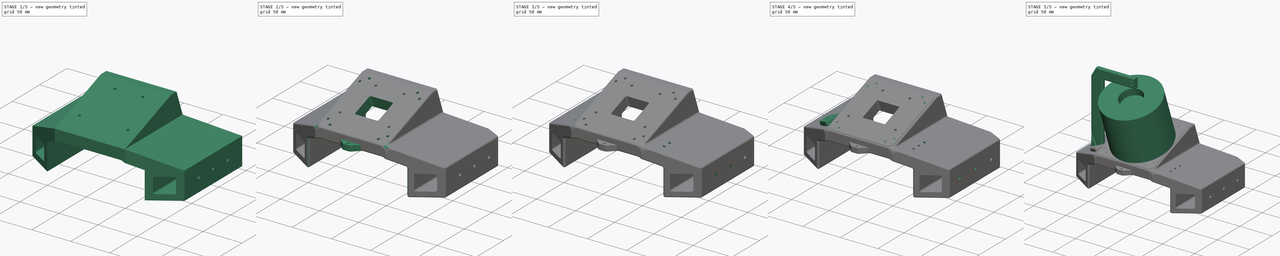
[diagram: build sequence overview — one tinted view per stage of 5, left to right]
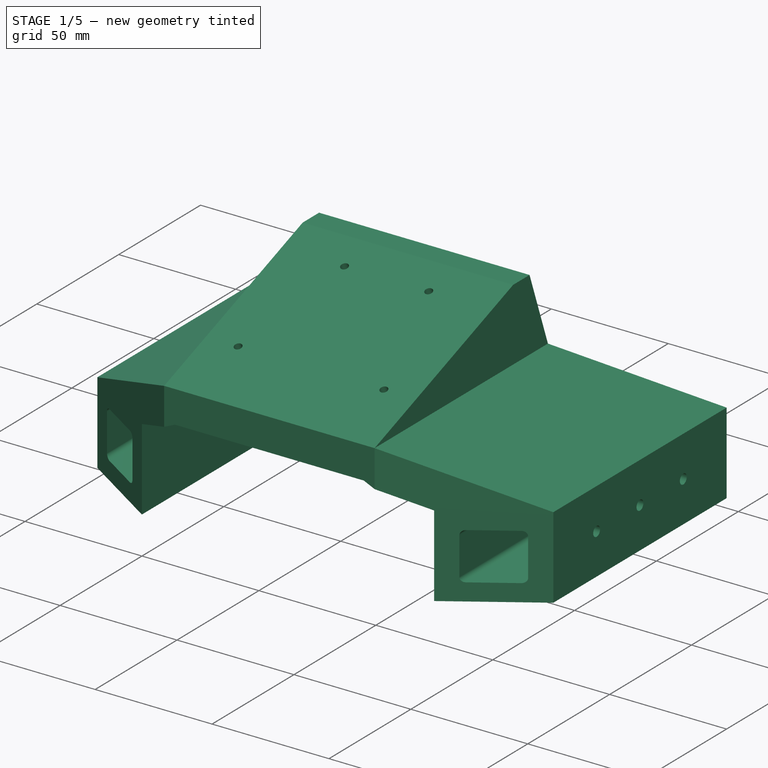
[diagram: stage 1 of 5 — iso view after this stage's code; geometry added in this stage tinted green]
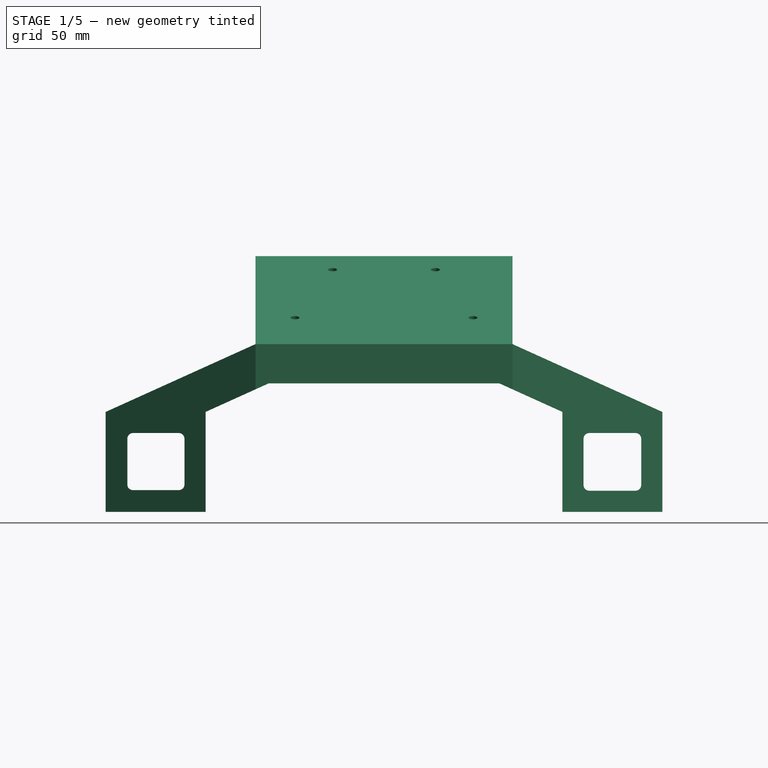
[diagram: stage 1 of 5 — front view after this stage's code; geometry added in this stage tinted green]
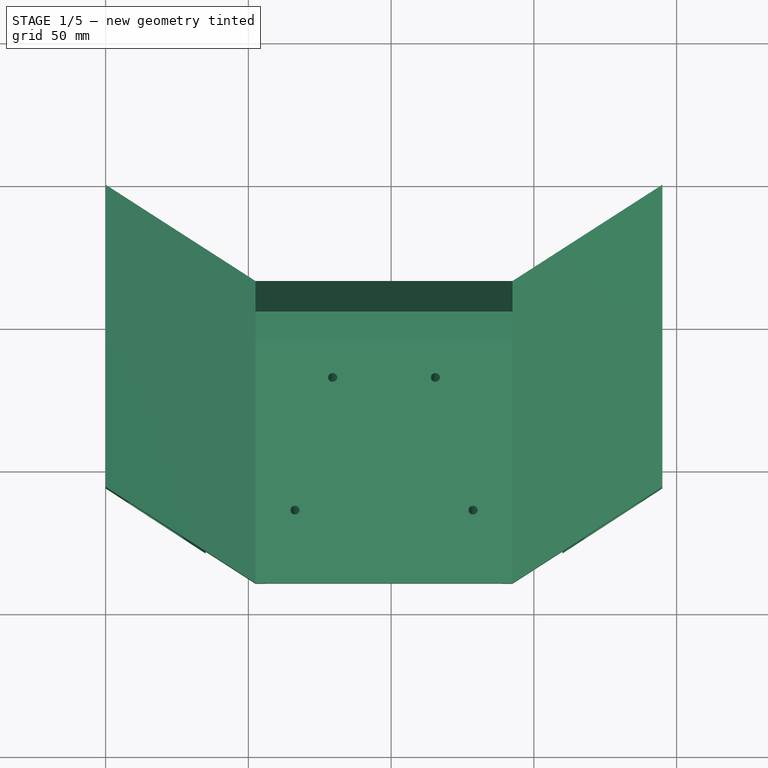
[diagram: stage 1 of 5 — top view after this stage's code; geometry added in this stage tinted green]
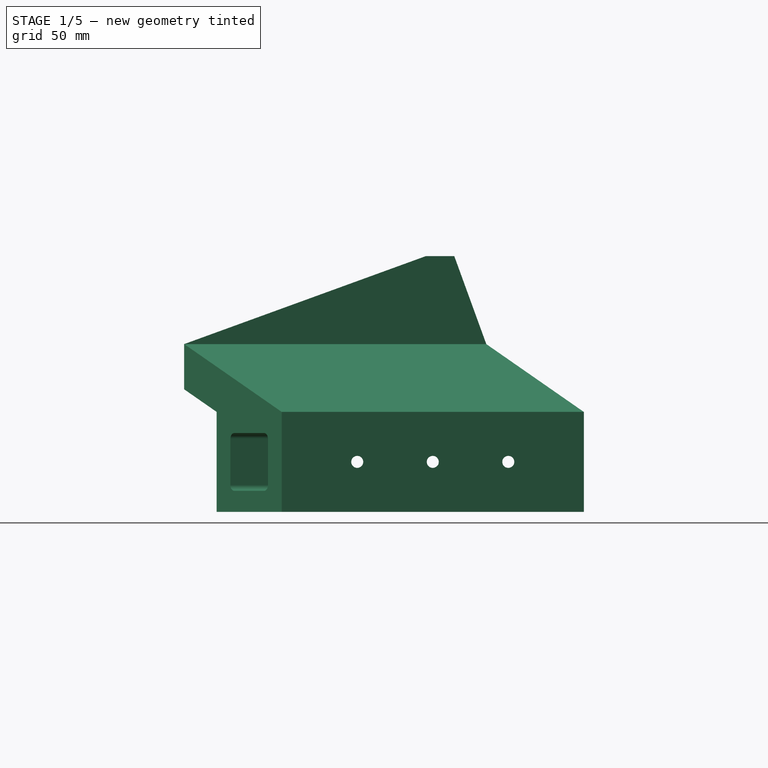
[diagram: stage 1 of 5 — right view after this stage's code; geometry added in this stage tinted green]
FCSTD DOCUMENT  (FreeCAD 0.19R24276 (Git))
Label: spot_lidar_mnt_v5
License: All rights reserved
LicenseURL: http://en.wikipedia.org/wiki/All_rights_reserved
objects: Sketcher::SketchObject×33, PartDesign::Pocket×19, PartDesign::Pad×14, PartDesign::Body×5, PartDesign::Plane×4, PartDesign::Fillet×4, PartDesign::ShapeBinder×4, Part::Feature×3
note: 123 computed .brp shape members not serialized (recipe doc carries the construction recipe); baked Part::Feature solids carry a one-line shape summary decoded from their .brp

FEATURE [Part::Feature] Solid  label="840-102144-D-SensorAssemblyOS0"
  shape: bbox 87 x 73.5 x 88.2 mm, 1295 faces (baked)
FEATURE [Part::Feature] Solid001  label="840-102144-D-SensorAssemblyOS0_FlatCap"
  shape: bbox 87 x 58.35 x 88.16 mm, 946 faces (baked)
FEATURE [Part::Feature] Solid002  label="320-101890-05-Mount"
  shape: bbox 110 x 20.5 x 110 mm, 265 faces (baked)
FEATURE [Sketcher::SketchObject] Sketch
  FullyConstrained = false
  MapMode = 5
  Placement = pos=(0,0,0) rot=(1,0,0;1.5708rad)
  Support = -> [XZ_Plane]
  sketch-geometry (39):
    g0: LineSegment StartX=0 StartY=0 StartZ=0 EndX=52.5 EndY=23.7606 EndZ=0
    g1: LineSegment StartX=195 StartY=0 StartZ=0 EndX=142.5 EndY=23.7606 EndZ=0
    g2: LineSegment StartX=52.5 StartY=23.7606 StartZ=0 EndX=142.5 EndY=23.7606 EndZ=0
    g3: LineSegment StartX=0 StartY=0 StartZ=0 EndX=0 EndY=-35 EndZ=0
    g4: LineSegment StartX=0 StartY=-35 StartZ=0 EndX=35 EndY=-35 EndZ=0
    g5: LineSegment StartX=35 StartY=-35 StartZ=0 EndX=35 EndY=0 EndZ=0
    g6: LineSegment StartX=35 StartY=0 StartZ=0 EndX=57.0954 EndY=10 EndZ=0
    g7: LineSegment StartX=57.0954 StartY=10 StartZ=0 EndX=137.905 EndY=10 EndZ=0
    g8: LineSegment StartX=137.905 StartY=10 StartZ=0 EndX=160 EndY=0 EndZ=0
    g9: LineSegment StartX=160 StartY=0 StartZ=0 EndX=160 EndY=-35 EndZ=0
    g10: LineSegment StartX=160 StartY=-35 StartZ=0 EndX=195 EndY=-35 EndZ=0
    g11: LineSegment StartX=195 StartY=-35 StartZ=0 EndX=195 EndY=0 EndZ=0
    g12: GeomPoint X=97.5 Y=10 Z=0
    g13: LineSegment StartX=7.6 StartY=-9.4 StartZ=0 EndX=7.6 EndY=-25.6 EndZ=0
    g14: LineSegment StartX=9.4 StartY=-27.4 StartZ=0 EndX=25.6 EndY=-27.4 EndZ=0
    g15: LineSegment StartX=27.6 StartY=-9.4 StartZ=0 EndX=27.6 EndY=-25.6 EndZ=0
    g16: LineSegment StartX=9.4 StartY=-7.4 StartZ=0 EndX=25.6 EndY=-7.4 EndZ=0
    g17: ArcOfCircle CenterX=9.59997 CenterY=-9.38998 CenterZ=0 NormalX=0 NormalY=0 NormalZ=1 AngleXU=0 Radius=2 StartAngle=1.67095 EndAngle=3.1466
    g18: ArcOfCircle CenterX=25.6 CenterY=-9.4 CenterZ=0 NormalX=0 NormalY=0 NormalZ=1 AngleXU=0 Radius=2 StartAngle=0 EndAngle=1.5708
    g19: ArcOfCircle CenterX=9.59087 CenterY=-25.4091 CenterZ=0 NormalX=0 NormalY=0 NormalZ=1 AngleXU=0 Radius=2 StartAngle=3.23717 EndAngle=4.61681
    g20: ArcOfCircle CenterX=25.61 CenterY=-25.4 CenterZ=0 NormalX=0 NormalY=0 NormalZ=1 AngleXU=0 Radius=2 StartAngle=4.70738 EndAngle=6.18303
    g21: LineSegment StartX=0 StartY=-17.5 StartZ=0 EndX=35 EndY=-17.5 EndZ=0
    g22: LineSegment StartX=17.5 StartY=0 StartZ=0 EndX=17.5 EndY=-35 EndZ=0
    g23: GeomPoint X=27.6 Y=-17.5 Z=0
    g24: GeomPoint X=7.6 Y=-17.5 Z=0
    g25: GeomPoint X=17.5 Y=-7.4 Z=0
    g26: LineSegment StartX=169.4 StartY=-7.4 StartZ=0 EndX=185.6 EndY=-7.4 EndZ=0
    g27: LineSegment StartX=187.6 StartY=-9.4 StartZ=0 EndX=187.6 EndY=-25.6 EndZ=0
    g28: LineSegment StartX=185.6 StartY=-27.6 StartZ=0 EndX=169.4 EndY=-27.6 EndZ=0
    g29: LineSegment StartX=167.4 StartY=-25.6 StartZ=0 EndX=167.4 EndY=-9.4 EndZ=0
    g30: ArcOfCircle CenterX=169.4 CenterY=-9.4 CenterZ=0 NormalX=0 NormalY=0 NormalZ=1 AngleXU=0 Radius=2 StartAngle=1.5708 EndAngle=3.14159
    g31: ArcOfCircle CenterX=185.6 CenterY=-9.4 CenterZ=0 NormalX=0 NormalY=0 NormalZ=1 AngleXU=0 Radius=2 StartAngle=0 EndAngle=1.5708
    g32: ArcOfCircle CenterX=185.6 CenterY=-25.6 CenterZ=0 NormalX=0 NormalY=0 NormalZ=1 AngleXU=0 Radius=2 StartAngle=4.71239 EndAngle=6.28319
    g33: ArcOfCircle CenterX=169.4 CenterY=-25.6 CenterZ=0 NormalX=0 NormalY=0 NormalZ=1 AngleXU=0 Radius=2 StartAngle=3.14159 EndAngle=4.71239
    g34: LineSegment StartX=160 StartY=-17.5 StartZ=0 EndX=195 EndY=-17.5 EndZ=0
    g35: LineSegment StartX=177.5 StartY=0 StartZ=0 EndX=177.5 EndY=-35 EndZ=0
    g36: GeomPoint X=167.4 Y=-17.5 Z=0
    g37: GeomPoint X=177.5 Y=-27.6 Z=0
    g38: LineSegment StartX=97.5 StartY=87.4445 StartZ=0 EndX=97.5 EndY=-35 EndZ=0
  constraints (101):
    c: Coincident(g0,g-1)
    c: PointOnObject(g1,g-1)
    c: Horizontal(g1,g0)
    c: Coincident(g2,g0)
    c: Coincident(g2,g1)
    c: Coincident(g3,g0)
    c: Vertical(g3)
    c: Coincident(g4,g3)
    c: Horizontal(g4)
    c: Coincident(g5,g4)
    c: PointOnObject(g5,g-1)
    c: Vertical(g5)
    c: Coincident(g6,g5)
    c: Coincident(g7,g6)
    c: Horizontal(g7)
    c: Coincident(g8,g7)
    c: PointOnObject(g8,g-1)
    c: Coincident(g9,g8)
    c: Vertical(g9)
    c: Coincident(g10,g9)
    c: Horizontal(g10)
    c: Coincident(g11,g10)
    c: Coincident(g11,g1)
    c: Vertical(g11)
    c: DistanceX(g4,g4) = 35
    c: DistanceX(g10,g10) = 35
    c: DistanceY(g9,g9) = 35
    c: Horizontal(g4,g9)
    c: Symmetric(g6,g7,g12)
    c: Parallel(g6,g0)
    c: Parallel(g8,g1)
    c: DistanceY(g-1,g6) = 10
    c: Vertical(g13)
    c: Horizontal(g14)
    c: Vertical(g15)
    c: Horizontal(g16)
    c: Coincident(g17,g13)
    c: Coincident(g17,g16)
    c: Radius(g17) = 2
    c: Vertical(g14,g16)
    c: Vertical(g14,g16)
    c: Horizontal(g13,g15)
    c: Horizontal(g13,g15)
    c: DistanceX(g13,g15) = 20
    c: DistanceY(g14,g16) = 20
    c: Coincident(g18,g16)
    c: Coincident(g18,g15)
    c: DistanceX(g16,g16) = 16.2
    c: DistanceY(g13,g13) = 16.2
    c: Coincident(g19,g13)
    c: Coincident(g19,g14)
    c: Coincident(g20,g14)
    c: Coincident(g20,g15)
    c: Equal(g18,g17)
    c: Equal(g17,g19)
    c: Equal(g17,g20)
    c: Vertical(g18,g16)
    c: Horizontal(g15,g18)
    c: PointOnObject(g21,g3)
    c: Horizontal(g21)
    c: PointOnObject(g22,g4)
    c: Vertical(g22)
    c: Symmetric(g0,g5,g22)
    c: Symmetric(g5,g4,g21)
    c: Symmetric(g13,g13,g24)
    c: PointOnObject(g24,g21)
    c: Symmetric(g15,g15,g23)
    c: Symmetric(g16,g16,g25)
    c: PointOnObject(g25,g22)
    c: Horizontal(g26)
    c: Horizontal(g28)
    c: Vertical(g27)
    c: Vertical(g29)
    c: Tangent(g26,g30) = 1.5708
    c: Tangent(g29,g30) = 1.5708
    c: Radius(g30) = 2
    c: Tangent(g26,g31) = 1.5708
    c: Tangent(g27,g31) = 1.5708
    c: Tangent(g28,g32) = 1.5708
    c: Tangent(g27,g32) = 1.5708
    c: Tangent(g29,g33) = 1.5708
    c: Tangent(g28,g33) = 1.5708
    c: Equal(g30,g33)
    c: Equal(g32,g30)
    c: Equal(g31,g30)
    c: DistanceX(g26,g26) = 16.2
    c: DistanceY(g29,g29) = 16.2
    c: Horizontal(g34)
    c: Symmetric(g8,g1,g35)
    c: Symmetric(g9,g10,g35)
    c: Symmetric(g1,g10,g34)
    c: PointOnObject(g34,g9)
    c: Symmetric(g28,g28,g37)
    c: PointOnObject(g37,g35)
    c: Symmetric(g29,g29,g36)
    c: PointOnObject(g36,g34)
    c: DistanceX(g22,g35) = 160
    c: DistanceX(g2,g2) = 90
    c: Vertical(g38)
    c: PointOnObject(g12,g38)
    c: Symmetric(g22,g35,g38)
FEATURE [PartDesign::Pad] Pad
  Direction = (1,1,1)
  Length = 140
  Length2 = 100
  Placement = pos=(0,0,0) rot=(1,0,0;1.5708rad)
  Profile = -> Sketch
  Type = 0
FEATURE [Sketcher::SketchObject] Sketch001
  ExternalGeometry = -> [Pad]
  FullyConstrained = true
  MapMode = 5
  Placement = pos=(0,0,23.7606) rot=(0,0,1;3.14159rad)
  Support = -> [Pad]
  sketch-geometry (4):
    g0: LineSegment StartX=-142.5 StartY=140 StartZ=0 EndX=-52.5 EndY=140 EndZ=0
    g1: LineSegment StartX=-52.5 StartY=140 StartZ=0 EndX=-52.5 EndY=0 EndZ=0
    g2: LineSegment StartX=-52.5 StartY=0 StartZ=0 EndX=-142.5 EndY=0 EndZ=0
    g3: LineSegment StartX=-142.5 StartY=0 StartZ=0 EndX=-142.5 EndY=140 EndZ=0
  constraints (10):
    c: Coincident(g0,g1)
    c: Coincident(g1,g2)
    c: Coincident(g2,g3)
    c: Coincident(g3,g0)
    c: Horizontal(g0)
    c: Horizontal(g2)
    c: Vertical(g1)
    c: Vertical(g3)
    c: Coincident(g0,g-5)
    c: Coincident(g1,g-4)
FEATURE [PartDesign::Pad] Pad001
  BaseFeature = -> Pad
  Direction = (1,1,1)
  Length = 30.8
  Length2 = 100
  Placement = pos=(0,0,0) rot=(1,0,0;1.5708rad)
  Profile = -> Sketch001
  Type = 0
FEATURE [Sketcher::SketchObject] Sketch002
  ExternalGeometry = -> [Pad001]
  FullyConstrained = true
  MapMode = 5
  Placement = pos=(52.5,0,0) rot=(0.707107,0,-0.707107;3.14159rad)
  Support = -> [Pad001]
  sketch-geometry (7):
    g0: LineSegment StartX=-23.7606 StartY=140 StartZ=0 EndX=-54.5606 EndY=55.3777 EndZ=0
    g1: LineSegment StartX=-54.5606 StartY=55.3777 StartZ=0 EndX=-54.5606 EndY=140 EndZ=0
    g2: LineSegment StartX=-54.5606 StartY=45.3777 StartZ=0 EndX=-23.7606 EndY=34.1674 EndZ=0
    g3: LineSegment StartX=-23.7606 StartY=2.7e-15 StartZ=0 EndX=-54.5606 EndY=0 EndZ=0
    g4: LineSegment StartX=-54.5606 StartY=0 StartZ=0 EndX=-54.5606 EndY=45.3777 EndZ=0
    g5: LineSegment StartX=-23.7606 StartY=2.7e-15 StartZ=0 EndX=-23.7606 EndY=34.1674 EndZ=0
    g6: LineSegment StartX=-54.5606 StartY=140 StartZ=0 EndX=-23.7606 EndY=140 EndZ=0
  constraints (17):
    c: Coincident(g0,g-5)
    c: Coincident(g1,g0)
    c: Vertical(g1)
    c: Angle(g0,g-5) = 0.349066
    c: Coincident(g1,g-4)
    c: PointOnObject(g2,g-3)
    c: Coincident(g3,g-3)
    c: Coincident(g4,g3)
    c: Coincident(g4,g2)
    c: Coincident(g5,g3)
    c: Coincident(g5,g2)
    c: Vertical(g5)
    c: Perpendicular(g2,g0)
    c: Distance(g2,g0) = 10
    c: Coincident(g3,g-5)
    c: Coincident(g6,g1)
    c: Coincident(g6,g0)
FEATURE [PartDesign::Pocket] Pocket
  BaseFeature = -> Pad001
  Length = 5
  Length2 = 100
  Placement = pos=(0,0,0) rot=(1,0,0;1.5708rad)
  Profile = -> Sketch002
  Type = 1
FEATURE [Sketcher::SketchObject] Sketch003
  ExternalGeometry = -> [Pocket]
  FullyConstrained = false
  MapMode = 5
  Placement = pos=(-1.47e-14,-24.0134,65.9763) rot=(0,-0.173648,0.984808;3.14159rad)
  Support = -> [Pocket]
  sketch-geometry (9):
    g0: Circle CenterX=-97.5 CenterY=78.4038 CenterZ=0 NormalX=0 NormalY=0 NormalZ=1 AngleXU=0 Radius=36
    g1: LineSegment StartX=-97.5 StartY=123.43 StartZ=0 EndX=-97.5 EndY=40.5622 EndZ=0
    g2: LineSegment StartX=-136.678 StartY=78.4038 StartZ=0 EndX=-52.5 EndY=78.4038 EndZ=0
    g3: Circle CenterX=-128.677 CenterY=96.4038 CenterZ=0 NormalX=0 NormalY=0 NormalZ=1 AngleXU=0 Radius=1.6
    g4: Circle CenterX=-66.3231 CenterY=96.4038 CenterZ=0 NormalX=0 NormalY=0 NormalZ=1 AngleXU=0 Radius=1.6
    g5: Circle CenterX=-115.5 CenterY=47.2269 CenterZ=0 NormalX=0 NormalY=0 NormalZ=1 AngleXU=0 Radius=1.6
    g6: Circle CenterX=-79.5 CenterY=47.2269 CenterZ=0 NormalX=0 NormalY=0 NormalZ=1 AngleXU=0 Radius=1.6
    g7: LineSegment StartX=-97.5 StartY=78.4038 StartZ=0 EndX=-66.3231 EndY=96.4038 EndZ=0
    g8: LineSegment StartX=-79.5 StartY=47.2269 StartZ=0 EndX=-97.5 EndY=78.4038 EndZ=0
  constraints (23):
    c: Vertical(g1)
    c: Horizontal(g2)
    c: Symmetric(g-4,g-5,g1)
    c: Symmetric(g-5,g-5,g2)
    c: PointOnObject(g0,g1)
    c: PointOnObject(g0,g2)
    c: Diameter(g0) = 72
    c: PointOnObject(g3,g0)
    c: PointOnObject(g4,g0)
    c: PointOnObject(g5,g0)
    c: PointOnObject(g6,g0)
    c: Equal(g3,g5)
    c: Equal(g4,g3)
    c: Equal(g6,g3)
    c: Diameter(g3) = 3.2
    c: Horizontal(g3,g4)
    c: Horizontal(g5,g6)
    c: Coincident(g7,g0)
    c: Coincident(g7,g4)
    c: Coincident(g8,g6)
    c: Coincident(g8,g0)
    c: Angle(g8,g1) = 2.61799
    c: Angle(g7,g1) = 1.0472
FEATURE [PartDesign::Pocket] Pocket001
  BaseFeature = -> Pocket
  Length = 5
  Length2 = 100
  Placement = pos=(0,0,0) rot=(1,0,0;1.5708rad)
  Profile = -> Sketch003
  Type = 1
FEATURE [PartDesign::Plane] DatumPlane
  AttachmentOffset = pos=(0,0,-60) rot=(0,0,1;0rad)
  Length = 261.233
  MapMode = 5
  Placement = pos=(-2.1e-15,-3.4922,9.59473) rot=(0,-0.173648,0.984808;3.14159rad)
  ResizeMode = 0
  Support = -> [Pocket001]
  Width = 234.431
FEATURE [Sketcher::SketchObject] Sketch004
  ExternalGeometry = -> [Pocket001]
  FullyConstrained = true
  MapMode = 5
  Placement = pos=(-2.1e-15,-3.4922,9.59473) rot=(0,-0.173648,0.984808;3.14159rad)
  Support = -> [DatumPlane]
  sketch-geometry (4):
    g0: LineSegment StartX=-137.905 StartY=37.2269 StartZ=0 EndX=-57.0954 EndY=37.2269 EndZ=0
    g1: LineSegment StartX=-57.0954 StartY=37.2269 StartZ=0 EndX=-57.0954 EndY=106.404 EndZ=0
    g2: LineSegment StartX=-57.0954 StartY=106.404 StartZ=0 EndX=-137.905 EndY=106.404 EndZ=0
    g3: LineSegment StartX=-137.905 StartY=106.404 StartZ=0 EndX=-137.905 EndY=37.2269 EndZ=0
  constraints (12):
    c: Coincident(g0,g1)
    c: Coincident(g1,g2)
    c: Coincident(g2,g3)
    c: Coincident(g3,g0)
    c: Horizontal(g0)
    c: Horizontal(g2)
    c: Vertical(g1)
    c: Vertical(g3)
    c: PointOnObject(g0,g-3)
    c: PointOnObject(g1,g-4)
    c: DistanceY(g-8,g2) = 10
    c: DistanceY(g0,g-7) = 10
FEATURE [PartDesign::Pocket] Pocket002
  BaseFeature = -> Pocket001
  Length = 46
  Length2 = 100
  Placement = pos=(0,0,0) rot=(1,0,0;1.5708rad)
  Profile = -> Sketch004
  Reversed = true
  Type = 0
FEATURE [Sketcher::SketchObject] Sketch005
  ExternalGeometry = -> [Pocket002]
  FullyConstrained = true
  MapMode = 5
  Placement = pos=(-5.2e-15,0,23.7606) rot=(0,0,1;3.14159rad)
  Support = -> [Pocket002]
  sketch-geometry (10):
    g0: LineSegment StartX=-52.5 StartY=34.1674 StartZ=0 EndX=0 EndY=0 EndZ=0
    g1: LineSegment StartX=-142.5 StartY=34.1674 StartZ=0 EndX=-195 EndY=0 EndZ=0
    g2: LineSegment StartX=-195 StartY=0 StartZ=0 EndX=0 EndY=0 EndZ=0
    g3: LineSegment StartX=-142.5 StartY=34.1674 StartZ=0 EndX=-52.5 EndY=34.1674 EndZ=0
    g4: LineSegment StartX=-52.5 StartY=140 StartZ=0 EndX=0 EndY=105.833 EndZ=0
    g5: LineSegment StartX=-142.5 StartY=140 StartZ=0 EndX=-195 EndY=105.833 EndZ=0
    g6: LineSegment StartX=-195 StartY=105.833 StartZ=0 EndX=-195 EndY=140 EndZ=0
    g7: LineSegment StartX=-195 StartY=140 StartZ=0 EndX=-142.5 EndY=140 EndZ=0
    g8: LineSegment StartX=-52.5 StartY=140 StartZ=0 EndX=0 EndY=140 EndZ=0
    g9: LineSegment StartX=0 StartY=140 StartZ=0 EndX=0 EndY=105.833 EndZ=0
  constraints (22):
    c: Coincident(g0,g-7)
    c: Coincident(g0,g-1)
    c: Coincident(g1,g-7)
    c: Coincident(g1,g-4)
    c: Coincident(g2,g1)
    c: Coincident(g2,g0)
    c: Coincident(g3,g1)
    c: Coincident(g3,g0)
    c: Coincident(g4,g-5)
    c: PointOnObject(g4,g-3)
    c: Coincident(g5,g-6)
    c: PointOnObject(g5,g-4)
    c: Coincident(g6,g5)
    c: Coincident(g6,g-4)
    c: Coincident(g7,g6)
    c: Coincident(g7,g5)
    c: Coincident(g8,g4)
    c: Coincident(g8,g-3)
    c: Coincident(g9,g8)
    c: Coincident(g9,g4)
    c: Horizontal(g5,g4)
    c: Parallel(g5,g1)
FEATURE [PartDesign::Pocket] Pocket003
  BaseFeature = -> Pocket002
  Length = 5
  Length2 = 100
  Placement = pos=(0,0,0) rot=(1,0,0;1.5708rad)
  Profile = -> Sketch005
  Type = 1
FEATURE [Sketcher::SketchObject] Sketch006
  ExternalGeometry = -> [Pocket003]
  FullyConstrained = true
  MapMode = 5
  Placement = pos=(0,0,0) rot=(0.707107,0,-0.707107;3.14159rad)
  Support = -> [Pocket003]
  sketch-geometry (4):
    g0: LineSegment StartX=17.5 StartY=105.833 StartZ=0 EndX=17.5 EndY=0 EndZ=0
    g1: Circle CenterX=17.5 CenterY=52.9163 CenterZ=0 NormalX=0 NormalY=0 NormalZ=1 AngleXU=0 Radius=2.1
    g2: Circle CenterX=17.5 CenterY=26.4581 CenterZ=0 NormalX=0 NormalY=0 NormalZ=1 AngleXU=0 Radius=2.1
    g3: Circle CenterX=17.5 CenterY=79.3744 CenterZ=0 NormalX=0 NormalY=0 NormalZ=1 AngleXU=0 Radius=2.1
  constraints (9):
    c: Vertical(g0)
    c: Symmetric(g-4,g-4,g0)
    c: PointOnObject(g0,g-5)
    c: Symmetric(g0,g0,g1)
    c: Diameter(g1) = 4.2
    c: Symmetric(g0,g1,g2)
    c: Symmetric(g1,g0,g3)
    c: Equal(g3,g1)
    c: Equal(g1,g2)
FEATURE [PartDesign::Pocket] Pocket004
  BaseFeature = -> Pocket003
  Length = 5
  Length2 = 100
  Placement = pos=(0,0,0) rot=(1,0,0;1.5708rad)
  Profile = -> Sketch006
  Type = 1
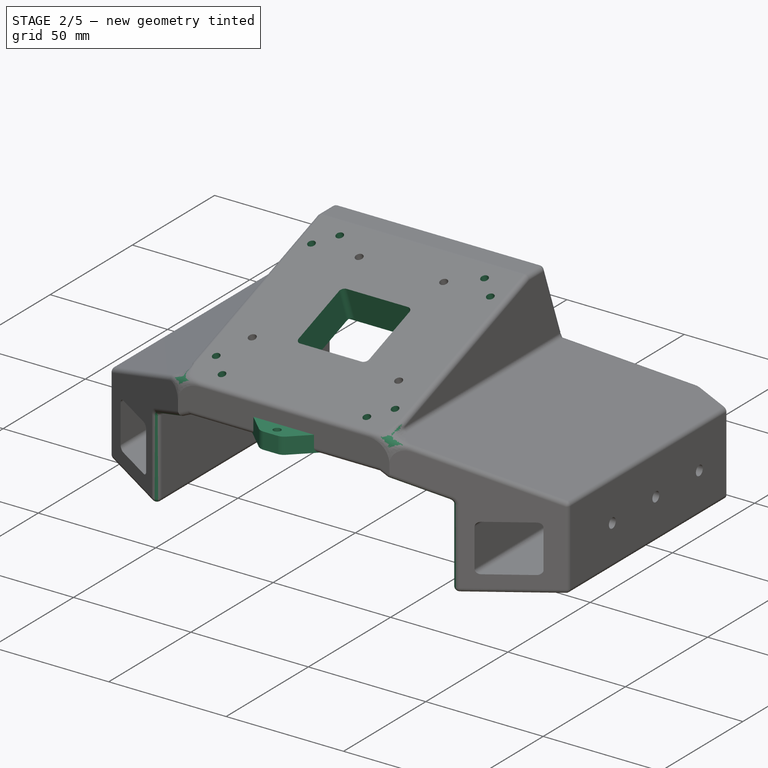
[diagram: stage 2 of 5 — iso view after this stage's code; geometry added in this stage tinted green]
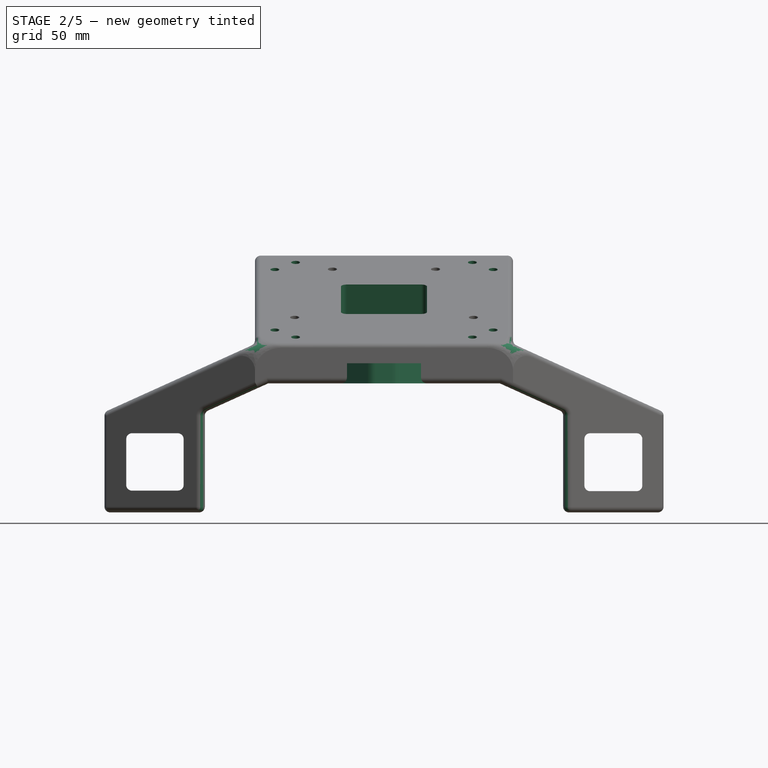
[diagram: stage 2 of 5 — front view after this stage's code; geometry added in this stage tinted green]
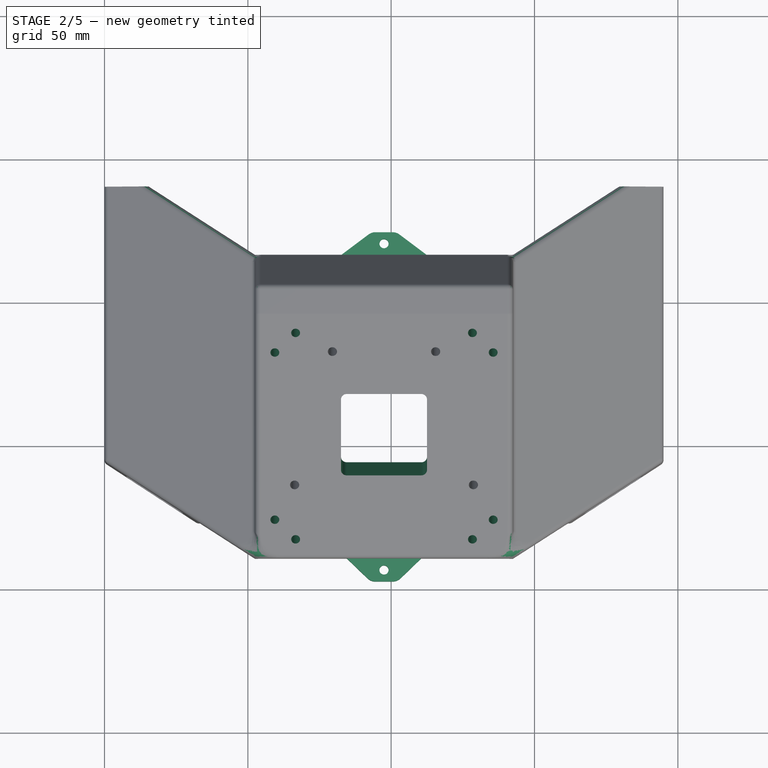
[diagram: stage 2 of 5 — top view after this stage's code; geometry added in this stage tinted green]
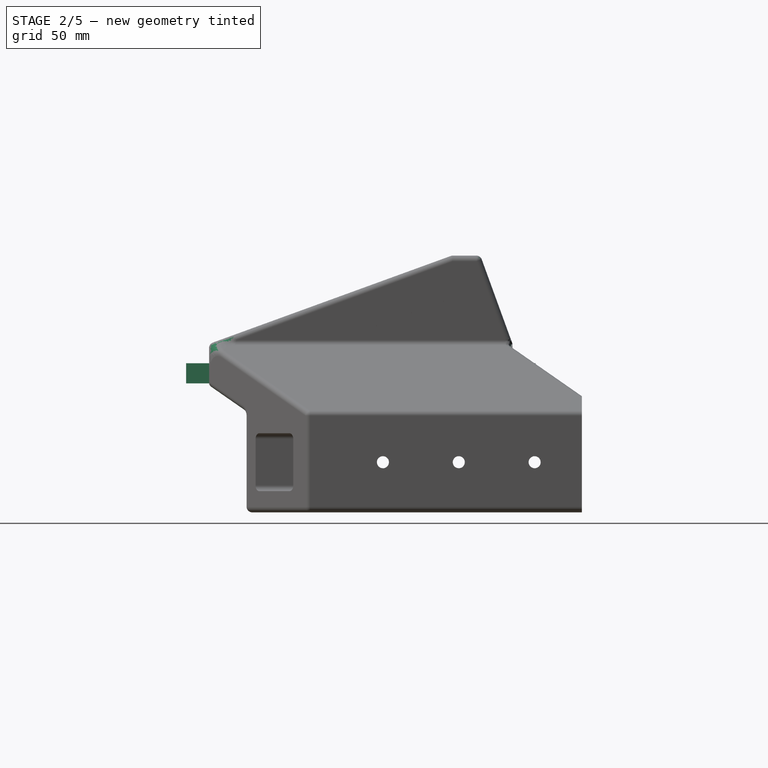
[diagram: stage 2 of 5 — right view after this stage's code; geometry added in this stage tinted green]
FEATURE [PartDesign::Fillet] Fillet
  Base = -> Pocket004 [Edge1,Edge5,Edge4,Edge34,Edge21,Edge3,Edge22,Edge23,Edge24,Edge47,Edge76,Edge77,Edge94,Edge120,Edge119,Edge117,Edge118,Edge138,Edge139,Edge70,Edge96,Edge97,Edge20,Edge71,Edge69,Edge67,Edge19,Edge68,Edge2,Edge108,Edge18,Edge66,Edge38,Edge134,Edge39,Edge93]
  BaseFeature = -> Pocket004
  Placement = pos=(0,0,0) rot=(1,0,0;1.5708rad)
  Radius = 2
  SupportTransform = false
FEATURE [Sketcher::SketchObject] Sketch007
  ExternalGeometry = -> [Fillet]
  FullyConstrained = true
  MapMode = 5
  Placement = pos=(-1.47e-14,-24.0134,65.9763) rot=(0,-0.173648,0.984808;3.14159rad)
  Support = -> [Fillet]
  sketch-geometry (15):
    g0: Circle CenterX=-97.5 CenterY=78.4038 CenterZ=0 NormalX=0 NormalY=0 NormalZ=1 AngleXU=0 Radius=36
    g1: LineSegment StartX=-128.337 StartY=40.3236 StartZ=0 EndX=-66.6633 EndY=116.484 EndZ=0
    g2: LineSegment StartX=-128.337 StartY=116.484 StartZ=0 EndX=-66.6633 EndY=40.3236 EndZ=0
    g3: Circle CenterX=-66.6633 CenterY=116.484 CenterZ=0 NormalX=0 NormalY=0 NormalZ=1 AngleXU=0 Radius=1.55
    g4: Circle CenterX=-66.6633 CenterY=40.3236 CenterZ=0 NormalX=0 NormalY=0 NormalZ=1 AngleXU=0 Radius=1.55
    g5: Circle CenterX=-128.337 CenterY=40.3236 CenterZ=0 NormalX=0 NormalY=0 NormalZ=1 AngleXU=0 Radius=1.55
    g6: Circle CenterX=-128.337 CenterY=116.484 CenterZ=0 NormalX=0 NormalY=0 NormalZ=1 AngleXU=0 Radius=1.55
    g7: Circle CenterX=-97.5 CenterY=78.4038 CenterZ=0 NormalX=0 NormalY=0 NormalZ=1 AngleXU=0 Radius=39
    g8: Circle CenterX=-97.5 CenterY=78.4038 CenterZ=0 NormalX=0 NormalY=0 NormalZ=1 AngleXU=0 Radius=43.5
    g9: LineSegment StartX=-135.58 StartY=109.24 StartZ=0 EndX=-59.4198 EndY=47.5671 EndZ=0
    g10: Circle CenterX=-135.58 CenterY=109.24 CenterZ=0 NormalX=0 NormalY=0 NormalZ=1 AngleXU=0 Radius=1.55
    g11: Circle CenterX=-59.4198 CenterY=47.5671 CenterZ=0 NormalX=0 NormalY=0 NormalZ=1 AngleXU=0 Radius=1.55
    g12: LineSegment StartX=-135.58 StartY=47.5671 StartZ=0 EndX=-59.4198 EndY=109.24 EndZ=0
    g13: Circle CenterX=-59.4198 CenterY=109.24 CenterZ=0 NormalX=0 NormalY=0 NormalZ=1 AngleXU=0 Radius=1.55
    g14: Circle CenterX=-135.58 CenterY=47.5671 CenterZ=0 NormalX=0 NormalY=0 NormalZ=1 AngleXU=0 Radius=1.55
  constraints (35):
    c: PointOnObject(g-3,g0)
    c: PointOnObject(g-6,g0)
    c: PointOnObject(g-5,g0)
    c: Angle(g-1,g2) = 2.25147
    c: Angle(g-1,g1) = 0.890118
    c: Symmetric(g2,g2,g0)
    c: Distance(g2,g0) = 49
    c: Equal(g2,g1)
    c: Symmetric(g1,g1,g0)
    c: Coincident(g3,g1)
    c: Coincident(g4,g2)
    c: Coincident(g5,g1)
    c: Coincident(g6,g2)
    c: Equal(g6,g3)
    c: Equal(g6,g5)
    c: Equal(g6,g4)
    c: Diameter(g6) = 3.1
    c: Coincident(g7,g0)
    c: Diameter(g7) = 78
    c: Coincident(g8,g0)
    c: Diameter(g8) = 87
    c: Equal(g2,g9)
    c: Coincident(g10,g9)
    c: Coincident(g11,g9)
    c: Equal(g6,g10)
    c: Equal(g6,g11)
    c: Angle(g-1,g9) = 2.46091
    c: Symmetric(g10,g11,g0)
    c: Symmetric(g12,g12,g0)
    c: Equal(g2,g12)
    c: Angle(g-1,g12) = 0.680678
    c: Coincident(g13,g12)
    c: Coincident(g14,g12)
    c: Equal(g6,g14)
    c: Equal(g6,g13)
FEATURE [PartDesign::Pocket] Pocket005
  BaseFeature = -> Fillet
  Length = 5
  Length2 = 100
  Placement = pos=(0,0,0) rot=(1,0,0;1.5708rad)
  Profile = -> Sketch007
  Type = 1
FEATURE [Sketcher::SketchObject] Sketch008
  ExternalGeometry = -> [Pocket005]
  FullyConstrained = true
  MapMode = 5
  Placement = pos=(0,-4e-16,54.5606) rot=(0,0,1;3.14159rad)
  Support = -> [Pocket005]
  sketch-geometry (4):
    g0: LineSegment StartX=0 StartY=0 StartZ=0 EndX=-195 EndY=0 EndZ=0
    g1: LineSegment StartX=-195 StartY=0 StartZ=0 EndX=-195 EndY=10 EndZ=0
    g2: LineSegment StartX=-195 StartY=10 StartZ=0 EndX=0 EndY=10 EndZ=0
    g3: LineSegment StartX=0 StartY=10 StartZ=0 EndX=0 EndY=0 EndZ=0
  constraints (11):
    c: Coincident(g0,g1)
    c: Coincident(g1,g2)
    c: Coincident(g2,g3)
    c: Coincident(g3,g0)
    c: Horizontal(g0)
    c: Horizontal(g2)
    c: Vertical(g1)
    c: Vertical(g3)
    c: Coincident(g0,g-1)
    c: PointOnObject(g-3,g1)
    c: DistanceY(g3,g3) = 10
FEATURE [PartDesign::Pocket] Pocket006
  BaseFeature = -> Pocket005
  Length = 5
  Length2 = 100
  Placement = pos=(0,0,0) rot=(1,0,0;1.5708rad)
  Profile = -> Sketch008
  Type = 1
FEATURE [PartDesign::Plane] DatumPlane001
  AttachmentOffset = pos=(0,0,40) rot=(0,0,1;0rad)
  Length = 261.233
  MapMode = 5
  Placement = pos=(-3.4e-15,-5.54432,15.2329) rot=(1,0,0;3.49066rad)
  ResizeMode = 0
  Support = -> [Pocket006]
  Width = 234.431
FEATURE [Sketcher::SketchObject] Sketch009
  ExternalGeometry = -> [Pocket006]
  FullyConstrained = true
  MapMode = 5
  Placement = pos=(-3.4e-15,-5.54432,15.2329) rot=(1,0,0;3.49066rad)
  Support = -> [DatumPlane001]
  sketch-geometry (4):
    g0: LineSegment StartX=55.4198 StartY=120.484 StartZ=0 EndX=139.58 EndY=120.484 EndZ=0
    g1: LineSegment StartX=139.58 StartY=120.484 StartZ=0 EndX=139.58 EndY=36.3236 EndZ=0
    g2: LineSegment StartX=139.58 StartY=36.3236 StartZ=0 EndX=55.4198 EndY=36.3236 EndZ=0
    g3: LineSegment StartX=55.4198 StartY=36.3236 StartZ=0 EndX=55.4198 EndY=120.484 EndZ=0
  constraints (12):
    c: Coincident(g0,g1)
    c: Coincident(g1,g2)
    c: Coincident(g2,g3)
    c: Coincident(g3,g0)
    c: Horizontal(g0)
    c: Horizontal(g2)
    c: Vertical(g1)
    c: Vertical(g3)
    c: DistanceY(g-8,g0) = 4
    c: DistanceY(g2,g-11) = 4
    c: DistanceX(g2,g-9) = 4
    c: DistanceX(g-10,g1) = 4
FEATURE [PartDesign::Pocket] Pocket007
  BaseFeature = -> Pocket006
  Length = 40
  Length2 = 100
  Placement = pos=(0,0,0) rot=(1,0,0;1.5708rad)
  Profile = -> Sketch009
  Type = 0
FEATURE [Sketcher::SketchObject] Sketch010
  ExternalGeometry = -> [Pocket007]
  FullyConstrained = true
  MapMode = 5
  Placement = pos=(-1.47e-14,-24.0134,65.9763) rot=(0,-0.173648,0.984808;3.14159rad)
  Support = -> [Pocket007]
  sketch-geometry (9):
    g0: LineSegment StartX=-97.5 StartY=122.03 StartZ=0 EndX=-97.5 EndY=33.7298 EndZ=0
    g1: LineSegment StartX=-140.5 StartY=77.8799 StartZ=0 EndX=-54.5 EndY=77.8799 EndZ=0
    g2: LineSegment StartX=-112.5 StartY=62.8799 StartZ=0 EndX=-82.5 EndY=62.8799 EndZ=0
    g3: LineSegment StartX=-82.5 StartY=62.8799 StartZ=0 EndX=-82.5 EndY=92.8799 EndZ=0
    g4: LineSegment StartX=-82.5 StartY=92.8799 StartZ=0 EndX=-112.5 EndY=92.8799 EndZ=0
    g5: LineSegment StartX=-112.5 StartY=92.8799 StartZ=0 EndX=-112.5 EndY=62.8799 EndZ=0
    g6: GeomPoint X=-97.5 Y=92.8799 Z=0
    g7: GeomPoint X=-112.5 Y=77.8799 Z=0
    g8: GeomPoint X=-97.5 Y=77.8799 Z=0
  constraints (22):
    c: PointOnObject(g0,g-3)
    c: Vertical(g0)
    c: PointOnObject(g1,g-4)
    c: PointOnObject(g1,g-5)
    c: Horizontal(g1)
    c: Coincident(g2,g3)
    c: Coincident(g3,g4)
    c: Coincident(g4,g5)
    c: Coincident(g5,g2)
    c: Horizontal(g2)
    c: Horizontal(g4)
    c: Vertical(g3)
    c: Vertical(g5)
    c: PointOnObject(g6,g0)
    c: PointOnObject(g7,g1)
    c: Symmetric(g4,g3,g6)
    c: Symmetric(g4,g2,g7)
    c: Symmetric(g-6,g-6,g0)
    c: Symmetric(g0,g0,g8)
    c: PointOnObject(g8,g1)
    c: Equal(g4,g3)
    c: DistanceX(g2,g2) = 30
FEATURE [PartDesign::Pocket] Pocket008
  BaseFeature = -> Pocket007
  Length = 5
  Length2 = 100
  Placement = pos=(0,0,0) rot=(1,0,0;1.5708rad)
  Profile = -> Sketch010
  Type = 1
FEATURE [PartDesign::Fillet] Fillet001
  Base = -> Pocket008 [Edge151,Edge149,Edge152,Edge154]
  BaseFeature = -> Pocket008
  Placement = pos=(0,0,0) rot=(1,0,0;1.5708rad)
  Radius = 2
  SupportTransform = false
FEATURE [Sketcher::SketchObject] Sketch011
  ExternalGeometry = -> [Fillet001]
  FullyConstrained = false
  MapMode = 5
  Placement = pos=(0,5.6e-15,10) rot=(1,0,0;3.14159rad)
  Support = -> [Fillet001]
  sketch-geometry (12):
    g0: GeomPoint X=97.5 Y=138 Z=0
    g1: Circle CenterX=97.5 CenterY=144 CenterZ=0 NormalX=0 NormalY=0 NormalZ=1 AngleXU=0 Radius=1.6
    g2: LineSegment StartX=82.5 StartY=138 StartZ=0 EndX=91.7258 EndY=146.882 EndZ=0
    g3: LineSegment StartX=94.5 StartY=148 StartZ=0 EndX=100.5 EndY=148 EndZ=0
    g4: LineSegment StartX=103.274 StartY=146.882 StartZ=0 EndX=112.5 EndY=138 EndZ=0
    g5: LineSegment StartX=97.5 StartY=138 StartZ=0 EndX=97.5 EndY=156.321 EndZ=0
    g6: GeomPoint X=97.5 Y=148 Z=0
    g7: GeomPoint X=97.5 Y=140 Z=0
    g8: ArcOfCircle CenterX=100.5 CenterY=144 CenterZ=0 NormalX=0 NormalY=0 NormalZ=1 AngleXU=0 Radius=4 StartAngle=0.804403 EndAngle=1.5708
    g9: ArcOfCircle CenterX=94.5 CenterY=144 CenterZ=0 NormalX=0 NormalY=0 NormalZ=1 AngleXU=0 Radius=4 StartAngle=1.5708 EndAngle=2.33719
    g10: GeomPoint X=97.5 Y=144 Z=0
    g11: LineSegment StartX=82.5 StartY=138 StartZ=0 EndX=112.5 EndY=138 EndZ=0
  constraints (24):
    c: Symmetric(g-3,g-3,g0)
    c: PointOnObject(g2,g-3)
    c: Horizontal(g3)
    c: Symmetric(g2,g4,g0)
    c: Coincident(g5,g0)
    c: Vertical(g5)
    c: PointOnObject(g1,g5)
    c: PointOnObject(g6,g5)
    c: DistanceY(g-5,g1) = 4
    c: PointOnObject(g7,g-5)
    c: Symmetric(g6,g7,g1)
    c: Tangent(g3,g8) = 1.5708
    c: Tangent(g4,g8) = 1.5708
    c: Tangent(g3,g9) = 1.5708
    c: Tangent(g2,g9) = 1.5708
    c: Horizontal(g8,g9)
    c: PointOnObject(g6,g3)
    c: Symmetric(g9,g8,g10)
    c: DistanceX(g9,g10) = 3
    c: DistanceX(g2,g4) = 30
    c: Coincident(g10,g1)
    c: Diameter(g1) = 3.2
    c: Coincident(g11,g2)
    c: Coincident(g11,g4)
FEATURE [PartDesign::Pad] Pad002
  BaseFeature = -> Fillet001
  Direction = (1,1,1)
  Length = 7
  Length2 = 100
  Placement = pos=(0,0,0) rot=(1,0,0;1.5708rad)
  Profile = -> Sketch011
  Reversed = true
  Type = 0
FEATURE [Sketcher::SketchObject] Sketch012
  ExternalGeometry = -> [Pad002]
  FullyConstrained = true
  MapMode = 5
  Placement = pos=(0,6.7e-15,10) rot=(1,0,0;3.14159rad)
  Support = -> [Pad002]
  sketch-geometry (9):
    g0: LineSegment StartX=82.5 StartY=34.1674 StartZ=0 EndX=92.1 EndY=26.9674 EndZ=0
    g1: LineSegment StartX=94.5 StartY=26.1674 StartZ=0 EndX=100.5 EndY=26.1674 EndZ=0
    g2: LineSegment StartX=102.9 StartY=26.9674 StartZ=0 EndX=112.5 EndY=34.1674 EndZ=0
    g3: LineSegment StartX=112.5 StartY=34.1674 StartZ=0 EndX=82.5 EndY=34.1674 EndZ=0
    g4: GeomPoint X=97.5 Y=34.1674 Z=0
    g5: LineSegment StartX=97.5 StartY=34.1674 StartZ=0 EndX=97.5 EndY=26.1674 EndZ=0
    g6: ArcOfCircle CenterX=100.5 CenterY=30.1674 CenterZ=0 NormalX=0 NormalY=0 NormalZ=1 AngleXU=0 Radius=4 StartAngle=4.71239 EndAngle=5.35589
    g7: ArcOfCircle CenterX=94.5 CenterY=30.1674 CenterZ=0 NormalX=0 NormalY=0 NormalZ=1 AngleXU=0 Radius=4 StartAngle=4.06889 EndAngle=4.71239
    g8: Circle CenterX=97.5 CenterY=30.1674 CenterZ=0 NormalX=0 NormalY=0 NormalZ=1 AngleXU=0 Radius=1.6
  constraints (20):
    c: PointOnObject(g0,g-3)
    c: Horizontal(g1)
    c: Coincident(g3,g2)
    c: Coincident(g3,g0)
    c: Symmetric(g0,g2,g4)
    c: Symmetric(g-3,g-3,g4)
    c: Coincident(g5,g4)
    c: Vertical(g5)
    c: Tangent(g1,g6) = -1.5708
    c: Tangent(g2,g6) = -1.5708
    c: Tangent(g0,g7) = -1.5708
    c: Tangent(g1,g7) = -1.5708
    c: Symmetric(g1,g1,g5)
    c: Horizontal(g6,g7)
    c: Symmetric(g5,g4,g8)
    c: Diameter(g8) = 3.2
    c: DistanceY(g5,g5) = 8
    c: DistanceX(g3,g3) = 30
    c: Horizontal(g7,g8)
    c: DistanceX(g7,g8) = 3
FEATURE [PartDesign::Pad] Pad003
  BaseFeature = -> Pad002
  Direction = (1,1,1)
  Length = 7
  Length2 = 100
  Placement = pos=(0,0,0) rot=(1,0,0;1.5708rad)
  Profile = -> Sketch012
  Reversed = true
  Type = 0
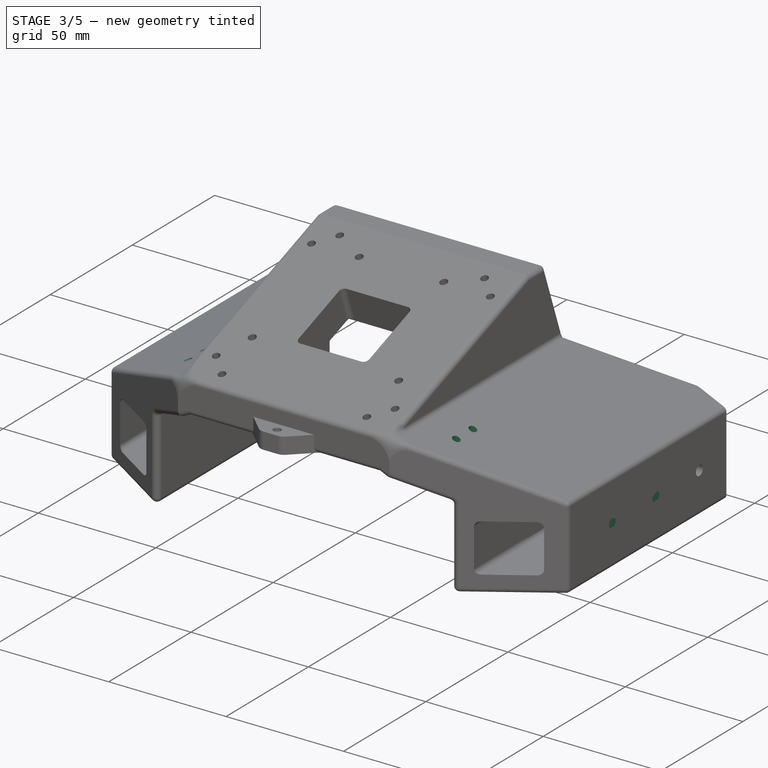
[diagram: stage 3 of 5 — iso view after this stage's code; geometry added in this stage tinted green]
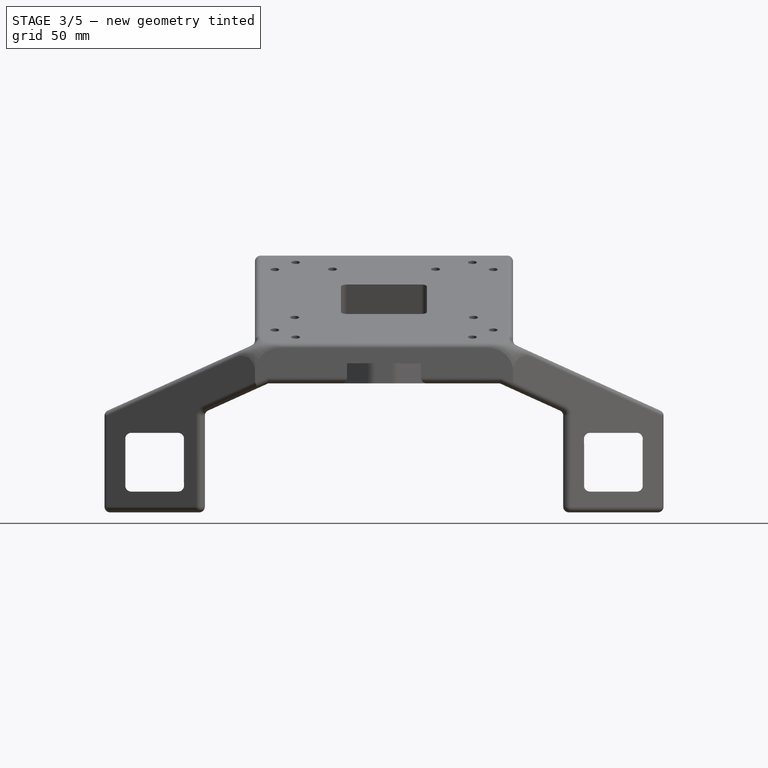
[diagram: stage 3 of 5 — front view after this stage's code; geometry added in this stage tinted green]
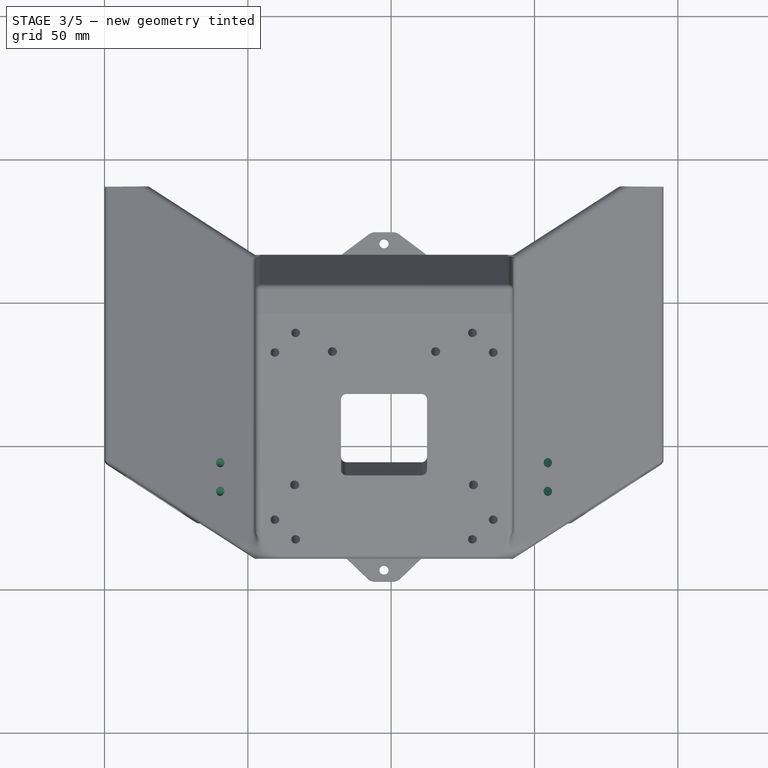
[diagram: stage 3 of 5 — top view after this stage's code; geometry added in this stage tinted green]
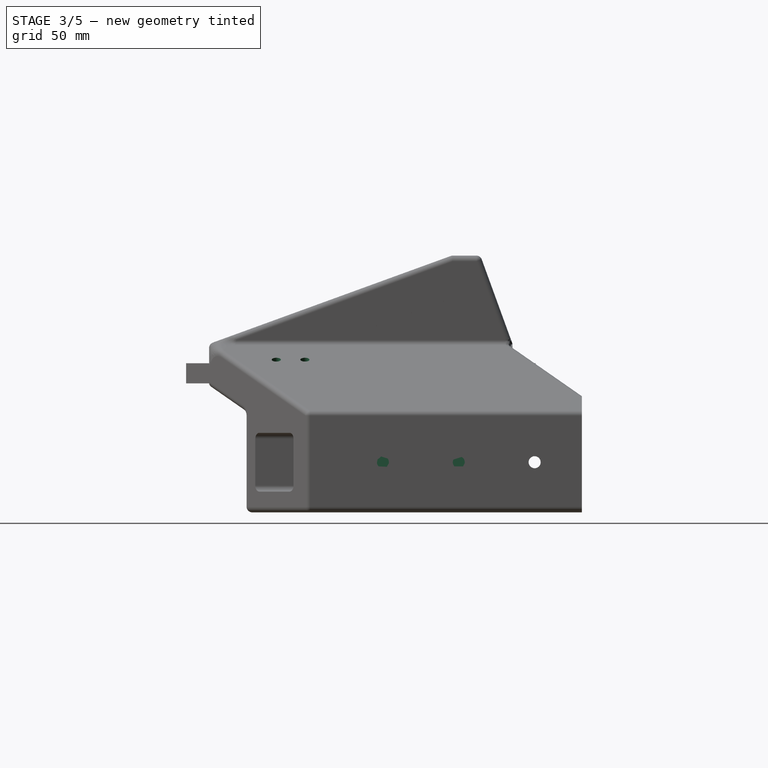
[diagram: stage 3 of 5 — right view after this stage's code; geometry added in this stage tinted green]
FEATURE [Sketcher::SketchObject] Sketch013
  ExternalGeometry = -> [Pad003]
  FullyConstrained = true
  MapMode = 5
  Placement = pos=(27.2014,4.67e-14,60.1024) rot=(0.977507,0,-0.210904;3.14159rad)
  Support = -> [Pad003]
  sketch-geometry (2):
    g0: Circle CenterX=133.352 CenterY=116.58 CenterZ=0 NormalX=0 NormalY=0 NormalZ=1 AngleXU=0 Radius=1.6
    g1: Circle CenterX=133.352 CenterY=106.58 CenterZ=0 NormalX=0 NormalY=0 NormalZ=1 AngleXU=0 Radius=1.6
  constraints (6):
    c: Diameter(g0) = 3.2
    c: DistanceY(g0,g-3) = 15
    c: DistanceX(g-3,g0) = 10
    c: Vertical(g1,g0)
    c: Equal(g0,g1)
    c: DistanceY(g1,g0) = 10
FEATURE [PartDesign::Pocket] Pocket009
  BaseFeature = -> Pad003
  Length = 5
  Length2 = 100
  Placement = pos=(0,0,0) rot=(1,0,0;1.5708rad)
  Profile = -> Sketch013
  Type = 1
FEATURE [Sketcher::SketchObject] Sketch014
  ExternalGeometry = -> [Pocket009]
  FullyConstrained = true
  MapMode = 5
  Placement = pos=(5.9503,-1.17e-14,-13.1474) rot=(0.977507,0,0.210904;3.14159rad)
  Support = -> [Pocket009]
  sketch-geometry (2):
    g0: Circle CenterX=44.3002 CenterY=116.58 CenterZ=0 NormalX=0 NormalY=0 NormalZ=1 AngleXU=0 Radius=1.6
    g1: Circle CenterX=44.3002 CenterY=106.58 CenterZ=0 NormalX=0 NormalY=0 NormalZ=1 AngleXU=0 Radius=1.6
  constraints (6):
    c: Diameter(g0) = 3.2
    c: Equal(g1,g0)
    c: Vertical(g1,g0)
    c: DistanceY(g1,g0) = 10
    c: DistanceY(g0,g-3) = 15
    c: DistanceX(g0,g-3) = 10
FEATURE [PartDesign::Pocket] Pocket010
  BaseFeature = -> Pocket009
  Length = 5
  Length2 = 100
  Placement = pos=(0,0,0) rot=(1,0,0;1.5708rad)
  Profile = -> Sketch014
  Type = 1
FEATURE [Sketcher::SketchObject] Sketch015
  ExternalGeometry = -> [Pocket010]
  FullyConstrained = false
  MapMode = 5
  Placement = pos=(0,-10,7.7e-15) rot=(-1,0,0;1.5708rad)
  Support = -> [Pocket010]
  sketch-geometry (26):
    g0: LineSegment StartX=202.409 StartY=17.5 StartZ=0 EndX=-8.33574 EndY=17.5 EndZ=0
    g1: LineSegment StartX=185.65 StartY=7.25 StartZ=0 EndX=169.35 EndY=7.25 EndZ=0
    g2: LineSegment StartX=167.25 StartY=9.35 StartZ=0 EndX=167.25 EndY=25.65 EndZ=0
    g3: LineSegment StartX=169.35 StartY=27.75 StartZ=0 EndX=185.65 EndY=27.75 EndZ=0
    g4: LineSegment StartX=187.75 StartY=25.65 StartZ=0 EndX=187.75 EndY=9.35 EndZ=0
    g5: ArcOfCircle CenterX=185.65 CenterY=9.35 CenterZ=0 NormalX=0 NormalY=0 NormalZ=1 AngleXU=0 Radius=2.1 StartAngle=4.71239 EndAngle=6.28319
    g6: ArcOfCircle CenterX=185.65 CenterY=25.65 CenterZ=0 NormalX=0 NormalY=0 NormalZ=1 AngleXU=0 Radius=2.1 StartAngle=-9e-16 EndAngle=1.5708
    g7: ArcOfCircle CenterX=169.35 CenterY=25.65 CenterZ=0 NormalX=0 NormalY=0 NormalZ=1 AngleXU=0 Radius=2.1 StartAngle=1.5708 EndAngle=3.14159
    g8: ArcOfCircle CenterX=169.35 CenterY=9.35 CenterZ=0 NormalX=0 NormalY=0 NormalZ=1 AngleXU=0 Radius=2.1 StartAngle=3.14159 EndAngle=4.71239
    g9: GeomPoint X=187.75 Y=17.5 Z=0
    g10: GeomPoint X=187.6 Y=17.5 Z=0
    g11: LineSegment StartX=25.65 StartY=7.25 StartZ=0 EndX=9.35 EndY=7.25 EndZ=0
    g12: LineSegment StartX=7.25 StartY=9.35 StartZ=0 EndX=7.25 EndY=25.65 EndZ=0
    g13: LineSegment StartX=9.35 StartY=27.75 StartZ=0 EndX=25.65 EndY=27.75 EndZ=0
    g14: LineSegment StartX=27.75 StartY=25.65 StartZ=0 EndX=27.75 EndY=9.35 EndZ=0
    g15: ArcOfCircle CenterX=25.65 CenterY=9.35 CenterZ=0 NormalX=0 NormalY=0 NormalZ=1 AngleXU=0 Radius=2.1 StartAngle=4.71239 EndAngle=6.28319
    g16: ArcOfCircle CenterX=9.35 CenterY=9.35 CenterZ=0 NormalX=0 NormalY=0 NormalZ=1 AngleXU=0 Radius=2.1 StartAngle=3.14159 EndAngle=4.71239
    g17: ArcOfCircle CenterX=9.35 CenterY=25.65 CenterZ=0 NormalX=0 NormalY=0 NormalZ=1 AngleXU=0 Radius=2.1 StartAngle=1.5708 EndAngle=3.14159
    g18: ArcOfCircle CenterX=25.65 CenterY=25.65 CenterZ=0 NormalX=0 NormalY=0 NormalZ=1 AngleXU=0 Radius=2.1 StartAngle=0 EndAngle=1.5708
    g19: GeomPoint X=27.75 Y=17.5 Z=0
    g20: GeomPoint X=7.25 Y=17.5 Z=0
    g21: GeomPoint X=17.5 Y=17.5 Z=0
    g22: GeomPoint X=177.5 Y=17.5 Z=0
    g23: GeomPoint X=167.25 Y=17.5 Z=0
    g24: GeomPoint X=195 Y=17.1713 Z=0
    g25: GeomPoint X=160 Y=17.8287 Z=0
  constraints (53):
    c: Horizontal(g0)
    c: Horizontal(g1)
    c: Horizontal(g3)
    c: Vertical(g2)
    c: Vertical(g4)
    c: Tangent(g1,g5) = 1.5708
    c: Tangent(g4,g5) = 1.5708
    c: Tangent(g4,g6) = 1.5708
    c: Tangent(g3,g6) = 1.5708
    c: Tangent(g2,g7) = 1.5708
    c: Tangent(g3,g7) = 1.5708
    c: Tangent(g2,g8) = 1.5708
    c: Tangent(g1,g8) = 1.5708
    c: Radius(g5) = 2.1
    c: Equal(g5,g8)
    c: Equal(g5,g6)
    c: Equal(g5,g7)
    c: DistanceY(g1,g3) = 20.5
    c: DistanceX(g2,g4) = 20.5
    c: Symmetric(g4,g4,g9)
    c: PointOnObject(g9,g0)
    c: PointOnObject(g10,g0)
    c: Symmetric(g-4,g-4,g10)
    c: Horizontal(g11)
    c: Horizontal(g13)
    c: Vertical(g12)
    c: Vertical(g14)
    c: Tangent(g11,g15) = 1.5708
    c: Tangent(g14,g15) = 1.5708
    c: Tangent(g11,g16) = 1.5708
    c: Tangent(g12,g16) = 1.5708
    c: Tangent(g12,g17) = 1.5708
    c: Tangent(g13,g17) = 1.5708
    c: Tangent(g14,g18) = 1.5708
    c: Tangent(g13,g18) = 1.5708
    c: Radius(g15) = 2.1
    c: Equal(g15,g16)
    c: Equal(g15,g18)
    c: Equal(g15,g17)
    c: DistanceY(g11,g13) = 20.5
    c: DistanceX(g12,g14) = 20.5
    c: PointOnObject(g19,g0)
    c: Symmetric(g14,g14,g19)
    c: PointOnObject(g20,g12)
    c: PointOnObject(g21,g0)
    c: Symmetric(g19,g20,g21)
    c: PointOnObject(g22,g0)
    c: PointOnObject(g23,g2)
    c: Symmetric(g9,g23,g22)
    c: DistanceX(g21,g22) = 160
    c: PointOnObject(g24,g-3)
    c: PointOnObject(g25,g-12)
    c: Symmetric(g24,g25,g22)
FEATURE [PartDesign::Pocket] Pocket011  label="editing_profile_holes"
  BaseFeature = -> Pocket010
  Length = 5
  Length2 = 100
  Placement = pos=(0,0,0) rot=(1,0,0;1.5708rad)
  Profile = -> Sketch015
  Type = 1
FEATURE [PartDesign::Body] Body004  label="screw_stensil"
  Group = -> [ShapeBinder003,Sketch024,Pad008]
  Origin = -> Origin004
  Tip = -> Pad008
FEATURE [Sketcher::SketchObject] Sketch025
  FullyConstrained = false
  MapMode = 5
  Placement = pos=(0,0,0) rot=(0.707107,0,-0.707107;3.14159rad)
  Support = -> [Pocket011]
  sketch-geometry (4):
    g0: LineSegment StartX=7.71942 StartY=37.5095 StartZ=0 EndX=27.1595 EndY=37.5095 EndZ=0
    g1: LineSegment StartX=27.1595 StartY=37.5095 StartZ=0 EndX=27.1595 EndY=91.1719 EndZ=0
    g2: LineSegment StartX=27.1595 StartY=91.1719 StartZ=0 EndX=7.71942 EndY=91.1719 EndZ=0
    g3: LineSegment StartX=7.71942 StartY=91.1719 StartZ=0 EndX=7.71942 EndY=37.5095 EndZ=0
  constraints (8):
    c: Coincident(g0,g1)
    c: Coincident(g1,g2)
    c: Coincident(g2,g3)
    c: Coincident(g3,g0)
    c: Horizontal(g0)
    c: Horizontal(g2)
    c: Vertical(g1)
    c: Vertical(g3)
FEATURE [PartDesign::Pad] Pad009
  BaseFeature = -> Pocket011
  Direction = (1,1,1)
  Length = 7.3
  Length2 = 100
  Placement = pos=(0,0,0) rot=(1,0,0;1.5708rad)
  Profile = -> Sketch025
  Reversed = true
  Type = 0
FEATURE [Sketcher::SketchObject] Sketch026
  FullyConstrained = false
  MapMode = 5
  Placement = pos=(35,0,0) rot=(0.707107,0,0.707107;3.14159rad)
  Support = -> [Pad009]
  sketch-geometry (4):
    g0: LineSegment StartX=-8.23414 StartY=89.7243 StartZ=0 EndX=-24.646 EndY=89.7243 EndZ=0
    g1: LineSegment StartX=-24.646 StartY=89.7243 StartZ=0 EndX=-24.646 EndY=45.3524 EndZ=0
    g2: LineSegment StartX=-24.646 StartY=45.3524 StartZ=0 EndX=-8.23414 EndY=45.3524 EndZ=0
    g3: LineSegment StartX=-8.23414 StartY=45.3524 StartZ=0 EndX=-8.23414 EndY=89.7243 EndZ=0
  constraints (8):
    c: Coincident(g0,g1)
    c: Coincident(g1,g2)
    c: Coincident(g2,g3)
    c: Coincident(g3,g0)
    c: Horizontal(g0)
    c: Horizontal(g2)
    c: Vertical(g1)
    c: Vertical(g3)
FEATURE [PartDesign::Pad] Pad010
  BaseFeature = -> Pad009
  Direction = (1,1,1)
  Length = 7.3
  Length2 = 100
  Placement = pos=(0,0,0) rot=(1,0,0;1.5708rad)
  Profile = -> Sketch026
  Reversed = true
  Type = 0
FEATURE [Sketcher::SketchObject] Sketch027
  FullyConstrained = false
  MapMode = 5
  Placement = pos=(195,0,0) rot=(0.707107,0,0.707107;3.14159rad)
  Support = -> [Pad010]
  sketch-geometry (4):
    g0: LineSegment StartX=-25.7701 StartY=93.7211 StartZ=0 EndX=-9.84595 EndY=93.7211 EndZ=0
    g1: LineSegment StartX=-9.84595 StartY=93.7211 StartZ=0 EndX=-9.84595 EndY=42.256 EndZ=0
    g2: LineSegment StartX=-9.84595 StartY=42.256 StartZ=0 EndX=-25.7701 EndY=42.256 EndZ=0
    g3: LineSegment StartX=-25.7701 StartY=42.256 StartZ=0 EndX=-25.7701 EndY=93.7211 EndZ=0
  constraints (8):
    c: Coincident(g0,g1)
    c: Coincident(g1,g2)
    c: Coincident(g2,g3)
    c: Coincident(g3,g0)
    c: Horizontal(g0)
    c: Horizontal(g2)
    c: Vertical(g1)
    c: Vertical(g3)
FEATURE [PartDesign::Pad] Pad011
  BaseFeature = -> Pad010
  Direction = (1,1,1)
  Length = 7.3
  Length2 = 100
  Placement = pos=(0,0,0) rot=(1,0,0;1.5708rad)
  Profile = -> Sketch027
  Reversed = true
  Type = 0
FEATURE [Sketcher::SketchObject] Sketch028
  FullyConstrained = false
  MapMode = 5
  Placement = pos=(160,0,0) rot=(0.707107,0,-0.707107;3.14159rad)
  Support = -> [Pad011]
  sketch-geometry (4):
    g0: LineSegment StartX=26.2581 StartY=45.9537 StartZ=0 EndX=11.0674 EndY=45.9537 EndZ=0
    g1: LineSegment StartX=11.0674 StartY=45.9537 StartZ=0 EndX=11.0674 EndY=91.5834 EndZ=0
    g2: LineSegment StartX=11.0674 StartY=91.5834 StartZ=0 EndX=26.2581 EndY=91.5834 EndZ=0
    g3: LineSegment StartX=26.2581 StartY=91.5834 StartZ=0 EndX=26.2581 EndY=45.9537 EndZ=0
  constraints (8):
    c: Coincident(g0,g1)
    c: Coincident(g1,g2)
    c: Coincident(g2,g3)
    c: Coincident(g3,g0)
    c: Horizontal(g0)
    c: Horizontal(g2)
    c: Vertical(g1)
    c: Vertical(g3)
FEATURE [PartDesign::Pad] Pad012
  BaseFeature = -> Pad011
  Direction = (1,1,1)
  Length = 7.3
  Length2 = 100
  Placement = pos=(0,0,0) rot=(1,0,0;1.5708rad)
  Profile = -> Sketch028
  Reversed = true
  Type = 0
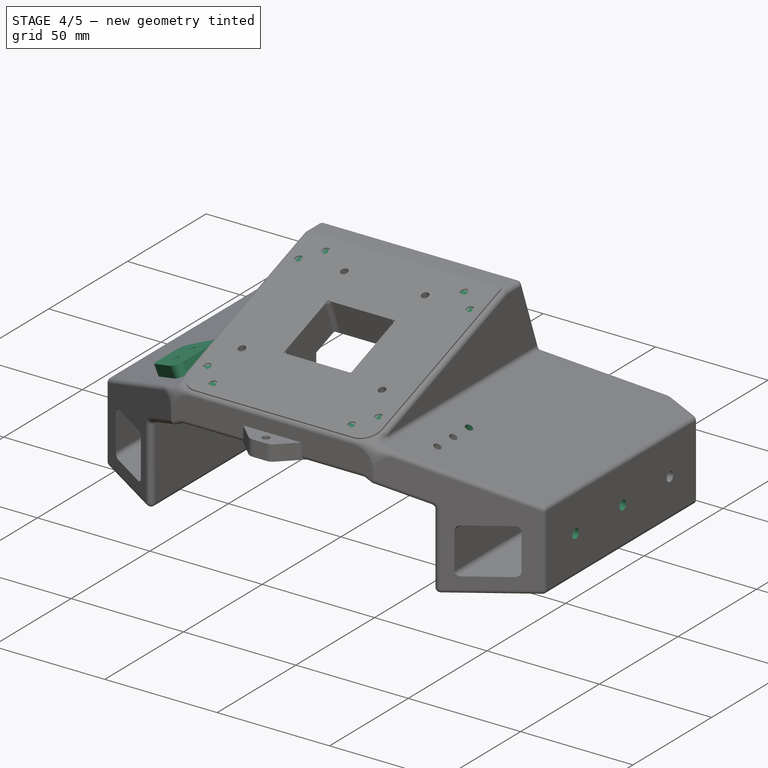
[diagram: stage 4 of 5 — iso view after this stage's code; geometry added in this stage tinted green]
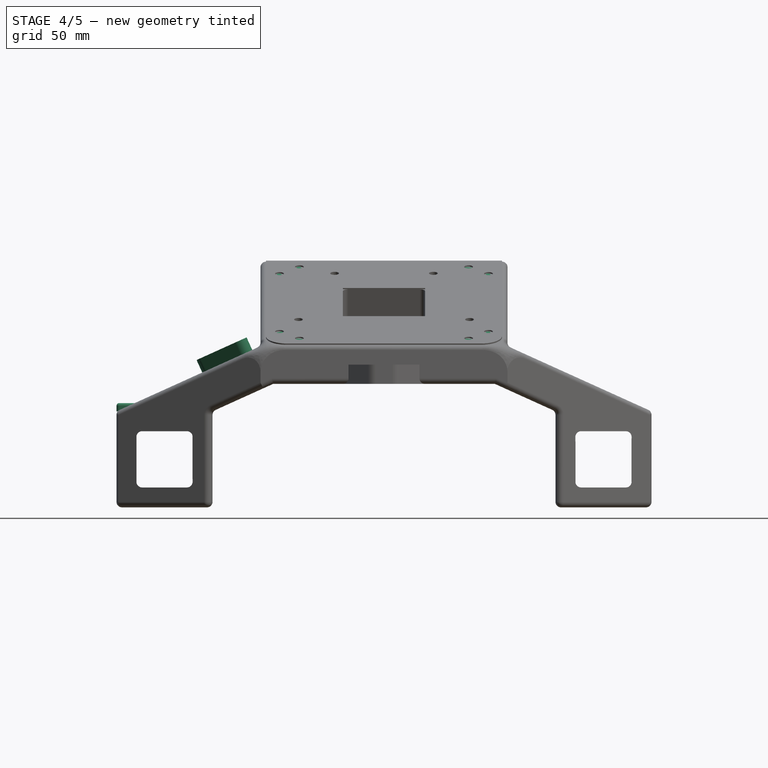
[diagram: stage 4 of 5 — front view after this stage's code; geometry added in this stage tinted green]
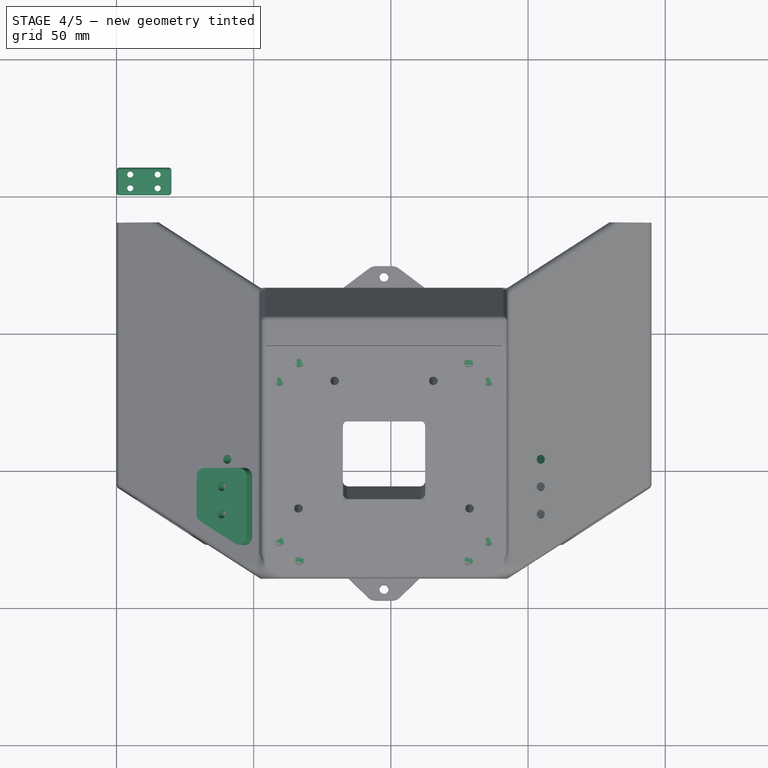
[diagram: stage 4 of 5 — top view after this stage's code; geometry added in this stage tinted green]
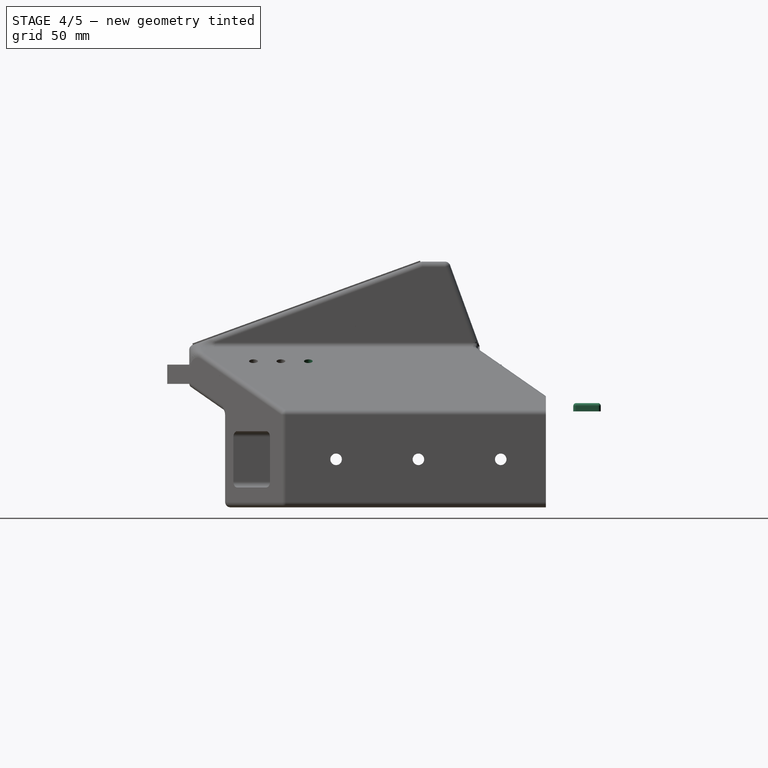
[diagram: stage 4 of 5 — right view after this stage's code; geometry added in this stage tinted green]
FEATURE [PartDesign::Body] Body001  label="dummy_lidar"
  Group = -> [ShapeBinder,Sketch016,Pad004,Sketch017,Pocket012]
  Origin = -> Origin001
  Tip = -> Pocket012
FEATURE [PartDesign::ShapeBinder] ShapeBinder001
  Support = -> [Pocket011]
  TraceSupport = false
FEATURE [Sketcher::SketchObject] Sketch018
  ExternalGeometry = -> [ShapeBinder001]
  FullyConstrained = false
  MapMode = 5
  Placement = pos=(0,0,0) rot=(0,-1,0;0.425rad)
  Support = -> [ShapeBinder001]
  sketch-geometry (11):
    g0: Circle CenterX=44.3002 CenterY=-106.58 CenterZ=0 NormalX=0 NormalY=0 NormalZ=1 AngleXU=0 Radius=1.6
    g1: Circle CenterX=44.3002 CenterY=-116.58 CenterZ=0 NormalX=0 NormalY=0 NormalZ=1 AngleXU=0 Radius=1.6
    g2: LineSegment StartX=34.3002 StartY=-102.808 StartZ=0 EndX=34.3002 EndY=-116.58 EndZ=0
    g3: LineSegment StartX=35.7701 StartY=-119.161 StartZ=0 EndX=49.7701 EndY=-127.461 EndZ=0
    g4: LineSegment StartX=54.3002 StartY=-124.881 StartZ=0 EndX=54.3002 EndY=-102.808 EndZ=0
    g5: LineSegment StartX=51.3002 StartY=-99.8077 StartZ=0 EndX=37.3002 EndY=-99.8077 EndZ=0
    g6: ArcOfCircle CenterX=51.3002 CenterY=-102.808 CenterZ=0 NormalX=0 NormalY=0 NormalZ=1 AngleXU=0 Radius=3 StartAngle=2.4e-15 EndAngle=1.5708
    g7: ArcOfCircle CenterX=37.3002 CenterY=-102.808 CenterZ=0 NormalX=0 NormalY=0 NormalZ=1 AngleXU=0 Radius=3 StartAngle=1.5708 EndAngle=3.14159
    g8: ArcOfCircle CenterX=37.3002 CenterY=-116.58 CenterZ=0 NormalX=0 NormalY=0 NormalZ=1 AngleXU=0 Radius=3 StartAngle=3.14159 EndAngle=4.1772
    g9: ArcOfCircle CenterX=51.3002 CenterY=-124.881 CenterZ=0 NormalX=0 NormalY=0 NormalZ=1 AngleXU=0 Radius=3 StartAngle=4.1772 EndAngle=6.28319
    g10: GeomPoint X=54.3002 Y=-116.58 Z=0
  constraints (24):
    c: Equal(g1,g-5)
    c: Equal(g0,g-3)
    c: Coincident(g0,g-3)
    c: Coincident(g1,g-5)
    c: Vertical(g2)
    c: Vertical(g4)
    c: Horizontal(g5)
    c: Tangent(g5,g6) = -1.5708
    c: Tangent(g4,g6) = -1.5708
    c: Tangent(g2,g7) = -1.5708
    c: Tangent(g5,g7) = -1.5708
    c: Tangent(g2,g8) = -1.5708
    c: Tangent(g3,g8) = -1.5708
    c: Tangent(g4,g9) = -1.5708
    c: Tangent(g3,g9) = -1.5708
    c: Radius(g6) = 3
    c: Equal(g6,g7)
    c: Equal(g7,g8)
    c: Equal(g7,g9)
    c: PointOnObject(g10,g4)
    c: Symmetric(g2,g10,g1)
    c: Distance(g4,g2) = 20
    c: Horizontal(g2,g10)
    c: Parallel(g3,g-6)
FEATURE [PartDesign::Pad] Pad005
  Direction = (1,1,1)
  Length = 5
  Length2 = 100
  Profile = -> Sketch018
  Type = 0
FEATURE [PartDesign::Body] Body002  label="rollcage_arc"
  Group = -> [ShapeBinder001,Sketch018,Pad005,DatumPlane002,Sketch019,Pad006,ShapeBinder002,DatumPlane003,Fillet002,Sketch020,Pocket013,Pocket014,Sketch021,Sketch022,Pocket015]
  Origin = -> Origin002
  Tip = -> Pocket015
FEATURE [Sketcher::SketchObject] Sketch023
  FullyConstrained = true
  MapMode = 5
  Support = -> [XY_Plane003]
  sketch-geometry (12):
    g0: LineSegment StartX=0 StartY=0 StartZ=0 EndX=20 EndY=0 EndZ=0
    g1: LineSegment StartX=20 StartY=0 StartZ=0 EndX=20 EndY=10 EndZ=0
    g2: LineSegment StartX=20 StartY=10 StartZ=0 EndX=0 EndY=10 EndZ=0
    g3: LineSegment StartX=0 StartY=10 StartZ=0 EndX=0 EndY=0 EndZ=0
    g4: Circle CenterX=5 CenterY=7.5 CenterZ=0 NormalX=0 NormalY=0 NormalZ=1 AngleXU=0 Radius=1.1
    g5: Circle CenterX=5 CenterY=2.5 CenterZ=0 NormalX=0 NormalY=0 NormalZ=1 AngleXU=0 Radius=1.1
    g6: Circle CenterX=15 CenterY=7.5 CenterZ=0 NormalX=0 NormalY=0 NormalZ=1 AngleXU=0 Radius=1.1
    g7: Circle CenterX=15 CenterY=2.5 CenterZ=0 NormalX=0 NormalY=0 NormalZ=1 AngleXU=0 Radius=1.1
    g8: LineSegment StartX=0 StartY=5 StartZ=0 EndX=20 EndY=5 EndZ=0
    g9: LineSegment StartX=10 StartY=10 StartZ=0 EndX=10 EndY=0 EndZ=0
    g10: GeomPoint X=10 Y=7.5 Z=0
    g11: GeomPoint X=5 Y=5 Z=0
  constraints (31):
    c: Coincident(g0,g1)
    c: Coincident(g1,g2)
    c: Coincident(g2,g3)
    c: Coincident(g3,g0)
    c: Horizontal(g0)
    c: Horizontal(g2)
    c: Vertical(g1)
    c: Vertical(g3)
    c: Coincident(g0,g-1)
    c: DistanceX(g2,g2) = 20
    c: DistanceY(g1,g1) = 10
    c: Vertical(g4,g5)
    c: Vertical(g6,g7)
    c: Horizontal(g4,g6)
    c: Horizontal(g5,g7)
    c: Radius(g4) = 1.1
    c: Equal(g4,g5)
    c: Equal(g4,g7)
    c: Equal(g4,g6)
    c: DistanceY(g5,g4) = 5
    c: DistanceX(g4,g6) = 10
    c: PointOnObject(g8,g3)
    c: Horizontal(g8)
    c: PointOnObject(g9,g0)
    c: Vertical(g9)
    c: Symmetric(g2,g1,g9)
    c: Symmetric(g1,g0,g8)
    c: PointOnObject(g10,g9)
    c: PointOnObject(g11,g8)
    c: Symmetric(g4,g5,g11)
    c: Symmetric(g4,g6,g10)
FEATURE [PartDesign::Pad] Pad007
  Direction = (1,1,1)
  Length = 3
  Length2 = 100
  Profile = -> Sketch023
  Type = 0
FEATURE [PartDesign::Fillet] Fillet003
  Base = -> Pad007 [Edge1,Edge12,Edge8,Edge10,Edge4,Edge7,Edge2,Edge5]
  BaseFeature = -> Pad007
  Radius = 1
  SupportTransform = false
FEATURE [PartDesign::Body] Body003  label="clipper"
  Group = -> [Sketch023,Pad007,Fillet003]
  Origin = -> Origin003
  Tip = -> Fillet003
FEATURE [PartDesign::ShapeBinder] ShapeBinder003
  Placement = pos=(0,0,0) rot=(1,0,0;1.5708rad)
  Support = -> [Pocket011]
  TraceSupport = false
FEATURE [Sketcher::SketchObject] Sketch024
  ExternalGeometry = -> [ShapeBinder003]
  FullyConstrained = true
  MapMode = 5
  Placement = pos=(-1.47e-14,-24.0134,65.9763) rot=(0,-0.173648,0.984808;3.14159rad)
  Support = -> [ShapeBinder003]
  sketch-geometry (22):
    g0: ArcOfCircle CenterX=-132.585 CenterY=114.163 CenterZ=0 NormalX=0 NormalY=0 NormalZ=1 AngleXU=0 Radius=7.9153 StartAngle=1.68175 EndAngle=3.14159
    g1: ArcOfCircle CenterX=-62.3666 CenterY=114.163 CenterZ=0 NormalX=0 NormalY=0 NormalZ=1 AngleXU=0 Radius=7.91006 StartAngle=0.10484 EndAngle=1.46596
    g2: LineSegment StartX=-140.5 StartY=114.163 StartZ=0 EndX=-140.5 EndY=33.7298 EndZ=0
    g3: LineSegment StartX=-140.5 StartY=33.7298 StartZ=0 EndX=-54.5 EndY=33.7298 EndZ=0
    g4: LineSegment StartX=-54.5 StartY=33.7298 StartZ=0 EndX=-54.5 EndY=114.991 EndZ=0
    g5: LineSegment StartX=-61.5389 StartY=122.03 StartZ=0 EndX=-133.461 EndY=122.03 EndZ=0
    g6: Circle CenterX=-135.58 CenterY=109.24 CenterZ=0 NormalX=0 NormalY=0 NormalZ=1 AngleXU=0 Radius=1.6
    g7: Circle CenterX=-128.337 CenterY=116.484 CenterZ=0 NormalX=0 NormalY=0 NormalZ=1 AngleXU=0 Radius=1.6
    g8: Circle CenterX=-128.677 CenterY=96.4038 CenterZ=0 NormalX=0 NormalY=0 NormalZ=1 AngleXU=0 Radius=1.6
    g9: Circle CenterX=-135.58 CenterY=47.5671 CenterZ=0 NormalX=0 NormalY=0 NormalZ=1 AngleXU=0 Radius=1.6
    g10: Circle CenterX=-128.337 CenterY=40.3236 CenterZ=0 NormalX=0 NormalY=0 NormalZ=1 AngleXU=0 Radius=1.6
    g11: Circle CenterX=-115.5 CenterY=47.2269 CenterZ=0 NormalX=0 NormalY=0 NormalZ=1 AngleXU=0 Radius=1.6
    g12: Circle CenterX=-79.5 CenterY=47.2269 CenterZ=0 NormalX=0 NormalY=0 NormalZ=1 AngleXU=0 Radius=1.6
    g13: Circle CenterX=-66.6633 CenterY=40.3236 CenterZ=0 NormalX=0 NormalY=0 NormalZ=1 AngleXU=0 Radius=1.6
    g14: Circle CenterX=-59.4198 CenterY=47.5671 CenterZ=0 NormalX=0 NormalY=0 NormalZ=1 AngleXU=0 Radius=1.6
    g15: Circle CenterX=-66.3231 CenterY=96.4038 CenterZ=0 NormalX=0 NormalY=0 NormalZ=1 AngleXU=0 Radius=1.6
    g16: Circle CenterX=-59.4198 CenterY=109.24 CenterZ=0 NormalX=0 NormalY=0 NormalZ=1 AngleXU=0 Radius=1.6
    g17: Circle CenterX=-66.6633 CenterY=116.484 CenterZ=0 NormalX=0 NormalY=0 NormalZ=1 AngleXU=0 Radius=1.6
    g18: LineSegment StartX=-112.5 StartY=92.8799 StartZ=0 EndX=-82.5 EndY=92.8799 EndZ=0
    g19: LineSegment StartX=-82.5 StartY=92.8799 StartZ=0 EndX=-82.5 EndY=62.8799 EndZ=0
    g20: LineSegment StartX=-82.5 StartY=62.8799 StartZ=0 EndX=-112.5 EndY=62.8799 EndZ=0
    g21: LineSegment StartX=-112.5 StartY=62.8799 StartZ=0 EndX=-112.5 EndY=92.8799 EndZ=0
  constraints (50):
    c: Coincident(g0,g-23)
    c: Coincident(g0,g-26)
    c: Coincident(g1,g-26)
    c: Coincident(g1,g-24)
    c: Horizontal(g0,g1)
    c: Coincident(g2,g0)
    c: Coincident(g2,g-25)
    c: Coincident(g3,g2)
    c: Coincident(g3,g-25)
    c: Coincident(g4,g3)
    c: Coincident(g4,g1)
    c: Coincident(g5,g1)
    c: Coincident(g5,g0)
    c: Horizontal(g0,g0)
    c: Coincident(g6,g-3)
    c: Coincident(g7,g-13)
    c: Coincident(g8,g-4)
    c: Coincident(g9,g-5)
    c: Coincident(g10,g-6)
    c: Coincident(g11,g-7)
    c: Coincident(g12,g-8)
    c: Coincident(g13,g-9)
    c: Coincident(g14,g-10)
    c: Coincident(g15,g-11)
    c: Coincident(g16,g-15)
    c: Coincident(g17,g-12)
    c: Radius(g7) = 1.6
    c: Equal(g7,g6)
    c: Equal(g7,g8)
    c: Equal(g8,g9)
    c: Equal(g9,g10)
    c: Equal(g11,g9)
    c: Equal(g11,g12)
    c: Equal(g12,g13)
    c: Equal(g14,g13)
    c: Equal(g14,g15)
    c: Equal(g15,g16)
    c: Equal(g16,g17)
    c: Coincident(g18,g19)
    c: Coincident(g19,g20)
    c: Coincident(g20,g21)
    c: Coincident(g21,g18)
    c: Horizontal(g18)
    c: Horizontal(g20)
    c: Vertical(g19)
    c: Vertical(g21)
    c: Horizontal(g-18,g18)
    c: Vertical(g-18,g18)
    c: Horizontal(g19,g-21)
    c: Vertical(g19,g-20)
FEATURE [PartDesign::Pad] Pad008
  Direction = (1,1,1)
  Length = 0.5
  Length2 = 100
  Placement = pos=(0,0,0) rot=(1,0,0;1.5708rad)
  Profile = -> Sketch024
  Type = 0
FEATURE [Sketcher::SketchObject] Sketch029
  ExternalGeometry = -> [Pad012]
  FullyConstrained = true
  MapMode = 5
  Placement = pos=(0,0,0) rot=(0.707107,0,-0.707107;3.14159rad)
  Support = -> [Pad012]
  sketch-geometry (2):
    g0: Circle CenterX=17.5 CenterY=56.4581 CenterZ=0 NormalX=0 NormalY=0 NormalZ=1 AngleXU=0 Radius=2.1
    g1: Circle CenterX=17.5 CenterY=86.4581 CenterZ=0 NormalX=0 NormalY=0 NormalZ=1 AngleXU=0 Radius=2.1
  constraints (5):
    c: Vertical(g-3,g0)
    c: Symmetric(g-3,g1,g0)
    c: Distance(g1,g-3) = 60
    c: Equal(g-3,g0)
    c: Equal(g0,g1)
FEATURE [PartDesign::Pocket] Pocket016
  BaseFeature = -> Pad012
  Length = 5
  Length2 = 100
  Placement = pos=(0,0,0) rot=(1,0,0;1.5708rad)
  Profile = -> Sketch029
  Type = 1
FEATURE [Sketcher::SketchObject] Sketch030
  ExternalGeometry = -> [Pocket016]
  FullyConstrained = true
  MapMode = 5
  Placement = pos=(0,0,0) rot=(-0.210904,0,0.977507;3.14159rad)
  Support = -> [Pocket016]
  sketch-geometry (1):
    g0: Circle CenterX=-44.3002 CenterY=96.58 CenterZ=0 NormalX=0 NormalY=0 NormalZ=1 AngleXU=0 Radius=1.6
  constraints (2):
    c: Equal(g-4,g0)
    c: Symmetric(g-3,g0,g-4)
FEATURE [PartDesign::Pocket] Pocket017
  BaseFeature = -> Pocket016
  Length = 5
  Length2 = 100
  Placement = pos=(0,0,0) rot=(1,0,0;1.5708rad)
  Profile = -> Sketch030
  Type = 1
FEATURE [Sketcher::SketchObject] Sketch031
  ExternalGeometry = -> [Pocket017]
  FullyConstrained = true
  MapMode = 5
  Placement = pos=(33.1517,1.301e-13,73.2499) rot=(0.210904,0,0.977507;3.14159rad)
  Support = -> [Pocket017]
  sketch-geometry (1):
    g0: Circle CenterX=-133.352 CenterY=96.58 CenterZ=0 NormalX=0 NormalY=0 NormalZ=1 AngleXU=0 Radius=1.6
  constraints (2):
    c: Symmetric(g-3,g0,g-4)
    c: Equal(g-4,g0)
FEATURE [PartDesign::Pocket] Pocket018
  BaseFeature = -> Pocket017
  Length = 5
  Length2 = 100
  Placement = pos=(0,0,0) rot=(1,0,0;1.5708rad)
  Profile = -> Sketch031
  Type = 1
FEATURE [Sketcher::SketchObject] Sketch032
  ExternalGeometry = -> [Pocket018]
  FullyConstrained = true
  MapMode = 5
  Placement = pos=(-1.47e-14,-24.0134,65.9763) rot=(0,-0.173648,0.984808;3.14159rad)
  Support = -> [Pocket018]
  sketch-geometry (8):
    g0: Circle CenterX=-135.58 CenterY=109.24 CenterZ=0 NormalX=0 NormalY=0 NormalZ=1 AngleXU=0 Radius=1.55
    g1: Circle CenterX=-128.337 CenterY=116.484 CenterZ=0 NormalX=0 NormalY=0 NormalZ=1 AngleXU=0 Radius=1.55
    g2: Circle CenterX=-66.6633 CenterY=116.484 CenterZ=0 NormalX=0 NormalY=0 NormalZ=1 AngleXU=0 Radius=1.55
    g3: Circle CenterX=-59.4198 CenterY=109.24 CenterZ=0 NormalX=0 NormalY=0 NormalZ=1 AngleXU=0 Radius=1.55
    g4: Circle CenterX=-59.4198 CenterY=47.5671 CenterZ=0 NormalX=0 NormalY=0 NormalZ=1 AngleXU=0 Radius=1.55
    g5: Circle CenterX=-66.6633 CenterY=40.3236 CenterZ=0 NormalX=0 NormalY=0 NormalZ=1 AngleXU=0 Radius=1.55
    g6: Circle CenterX=-135.58 CenterY=47.5671 CenterZ=0 NormalX=0 NormalY=0 NormalZ=1 AngleXU=0 Radius=1.55
    g7: Circle CenterX=-128.337 CenterY=40.3236 CenterZ=0 NormalX=0 NormalY=0 NormalZ=1 AngleXU=0 Radius=1.55
  constraints (16):
    c: Coincident(g0,g-6)
    c: Equal(g0,g-6)
    c: Equal(g-5,g1)
    c: Coincident(g1,g-5)
    c: Coincident(g2,g-4)
    c: Coincident(g3,g-3)
    c: Equal(g3,g-3)
    c: Equal(g2,g-4)
    c: Equal(g4,g-10)
    c: Equal(g5,g-9)
    c: Coincident(g5,g-9)
    c: Coincident(g-10,g4)
    c: Coincident(g7,g-8)
    c: Coincident(g6,g-7)
    c: Equal(g-7,g6)
    c: Equal(g7,g-8)
FEATURE [PartDesign::Pad] Pad013
  BaseFeature = -> Pocket018
  Direction = (1,1,1)
  Length = 14
  Length2 = 100
  Placement = pos=(0,0,0) rot=(1,0,0;1.5708rad)
  Profile = -> Sketch032
  Reversed = true
  Type = 0
FEATURE [PartDesign::Body] Body  label="item_mnt_base"
  Group = -> [Sketch,Pad,Sketch001,Pad001,Sketch002,Pocket,Sketch003,Pocket001,DatumPlane,Sketch004,Pocket002,Sketch005,Pocket003,Sketch006,Pocket004,Fillet,Sketch007,Pocket005,Sketch008,Pocket006,DatumPlane001,Sketch009,Pocket007,Sketch010,Pocket008,Fillet001,Sketch011,Pad002,Sketch012,Pad003,Sketch013,Pocket009,Sketch014,Pocket010,Sketch015,Pocket011,Sketch025,Pad009,Sketch026,Pad010,Sketch027,Pad011,+10 more]
  Origin = -> Origin
  Tip = -> Pad013
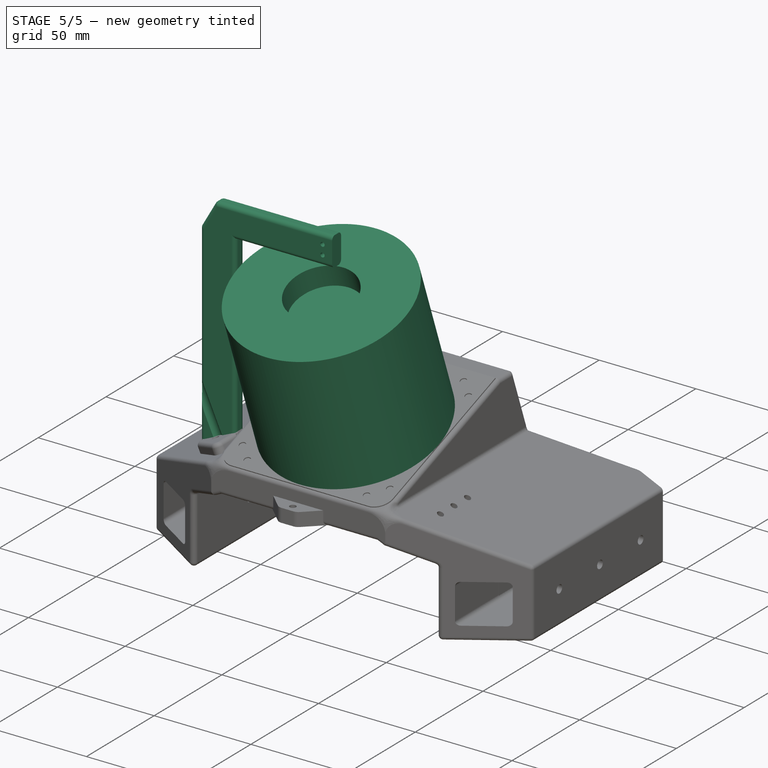
[diagram: stage 5 of 5 — iso view after this stage's code; geometry added in this stage tinted green]
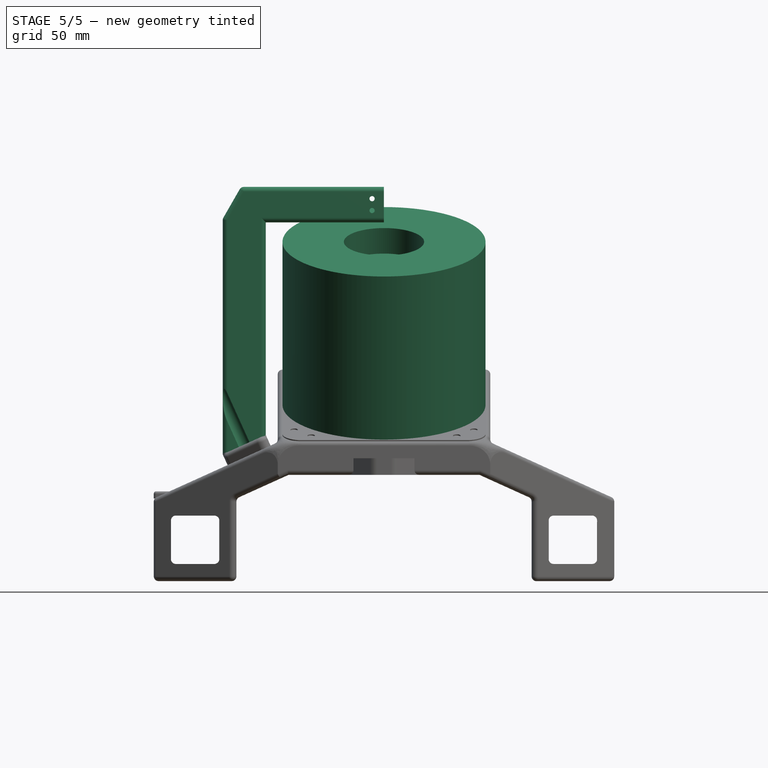
[diagram: stage 5 of 5 — front view after this stage's code; geometry added in this stage tinted green]
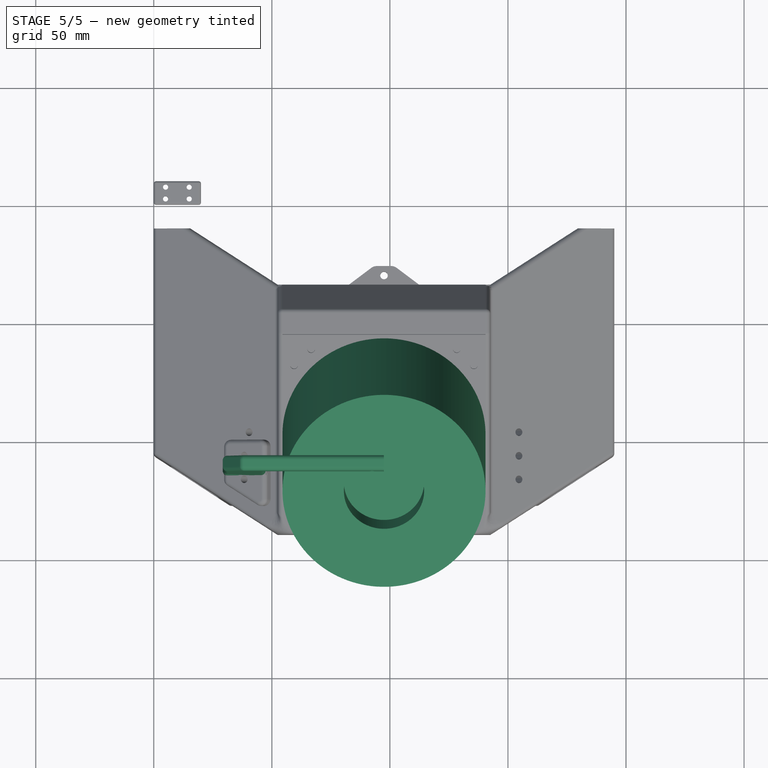
[diagram: stage 5 of 5 — top view after this stage's code; geometry added in this stage tinted green]
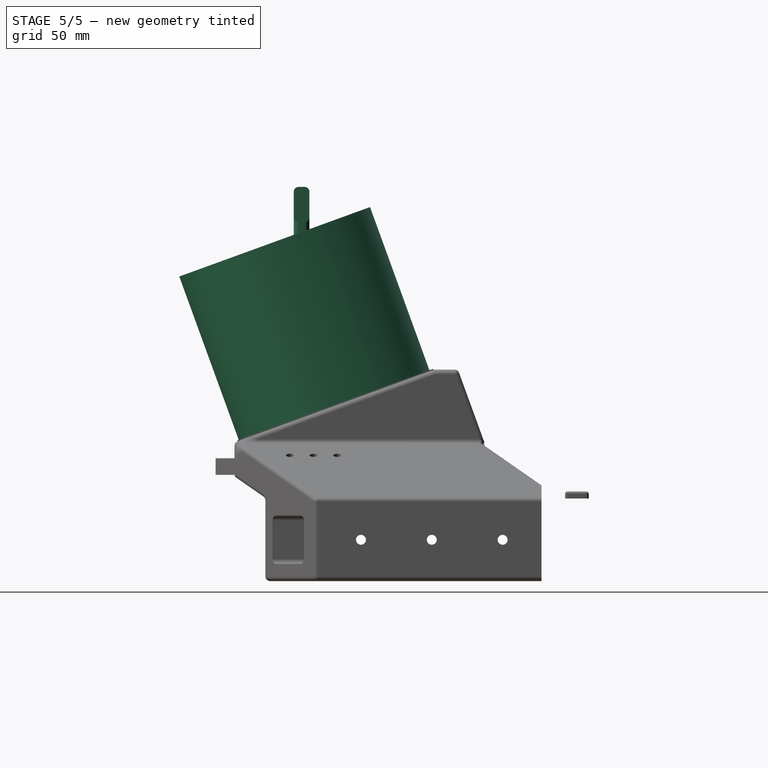
[diagram: stage 5 of 5 — right view after this stage's code; geometry added in this stage tinted green]
FEATURE [PartDesign::ShapeBinder] ShapeBinder
  Placement = pos=(0,0,0) rot=(1,0,0;1.5708rad)
  Support = -> [Pocket011]
  TraceSupport = false
FEATURE [Sketcher::SketchObject] Sketch016
  ExternalGeometry = -> [ShapeBinder]
  FullyConstrained = true
  MapMode = 5
  Placement = pos=(-1.47e-14,-24.0134,65.9763) rot=(0,-0.173648,0.984808;3.14159rad)
  Support = -> [ShapeBinder]
  sketch-geometry (4):
    g0: LineSegment StartX=-97.5 StartY=109.24 StartZ=0 EndX=-97.5 EndY=47.5671 EndZ=0
    g1: LineSegment StartX=-135.58 StartY=78.4038 StartZ=0 EndX=-59.4198 EndY=78.4038 EndZ=0
    g2: GeomPoint X=-97.5 Y=78.4038 Z=0
    g3: Circle CenterX=-97.5 CenterY=78.4038 CenterZ=0 NormalX=0 NormalY=0 NormalZ=1 AngleXU=0 Radius=43
  constraints (8):
    c: Symmetric(g-5,g-4,g1)
    c: Symmetric(g-3,g-5,g0)
    c: Symmetric(g-6,g-4,g0)
    c: Symmetric(g-3,g-6,g1)
    c: PointOnObject(g2,g0)
    c: PointOnObject(g2,g1)
    c: Coincident(g3,g2)
    c: Radius(g3) = 43
FEATURE [PartDesign::Pad] Pad004
  Direction = (1,1,1)
  Length = 74
  Length2 = 100
  Placement = pos=(0,0,0) rot=(1,0,0;1.5708rad)
  Profile = -> Sketch016
  Type = 0
FEATURE [Sketcher::SketchObject] Sketch017
  ExternalGeometry = -> [Pad004]
  FullyConstrained = true
  MapMode = 5
  Placement = pos=(-4.51e-14,-49.3229,135.514) rot=(0,-0.173648,0.984808;3.14159rad)
  Support = -> [Pad004]
  sketch-geometry (1):
    g0: Circle CenterX=-97.5 CenterY=78.4038 CenterZ=0 NormalX=0 NormalY=0 NormalZ=1 AngleXU=0 Radius=17
  constraints (2):
    c: Coincident(g0,g-3)
    c: Diameter(g0) = 34
FEATURE [PartDesign::Pocket] Pocket012
  BaseFeature = -> Pad004
  Length = 11.5
  Length2 = 100
  Placement = pos=(0,0,0) rot=(1,0,0;1.5708rad)
  Profile = -> Sketch017
  Type = 0
FEATURE [PartDesign::Plane] DatumPlane002
  AttachmentOffset = pos=(0,0,-8.5) rot=(0,0,1;0rad)
  Length = 150.175
  MapMode = 5
  Placement = pos=(0,-108.308,1.202e-13) rot=(0,0.707107,0.707107;3.14159rad)
  ResizeMode = 0
  Support = -> [Pad005]
  Width = 184.67
FEATURE [Sketcher::SketchObject] Sketch019
  ExternalGeometry = -> [Pad005]
  FullyConstrained = false
  MapMode = 5
  Placement = pos=(0,-108.308,1.202e-13) rot=(0,0.707107,0.707107;3.14159rad)
  Support = -> [DatumPlane002]
  sketch-geometry (8):
    g0: LineSegment StartX=-47.4079 StartY=26.9443 StartZ=0 EndX=-47.4079 EndY=116.944 EndZ=0
    g1: LineSegment StartX=-47.4079 StartY=116.944 StartZ=0 EndX=-98.3491 EndY=116.944 EndZ=0
    g2: LineSegment StartX=-98.3491 StartY=116.944 StartZ=0 EndX=-98.3491 EndY=131.944 EndZ=0
    g3: LineSegment StartX=-47.4079 StartY=26.9443 StartZ=0 EndX=-29.1872 EndY=18.6979 EndZ=0
    g4: LineSegment StartX=-98.3491 StartY=131.944 StartZ=0 EndX=-36.9593 EndY=131.944 EndZ=0
    g5: LineSegment StartX=-29.1872 StartY=18.6979 StartZ=0 EndX=-29.1872 EndY=118.42 EndZ=0
    g6: LineSegment StartX=-29.1872 StartY=118.42 StartZ=0 EndX=-36.9593 EndY=131.944 EndZ=0
    g7: LineSegment StartX=-47.4079 StartY=116.944 StartZ=0 EndX=-33.0733 EndY=125.182 EndZ=0
  constraints (19):
    c: Coincident(g0,g-4)
    c: Vertical(g0)
    c: Coincident(g1,g0)
    c: Horizontal(g1)
    c: Vertical(g2,g1)
    c: Coincident(g2,g1)
    c: DistanceY(g0,g0) = 90
    c: Coincident(g3,g0)
    c: Coincident(g4,g2)
    c: Horizontal(g4)
    c: Coincident(g5,g3)
    c: Vertical(g5)
    c: Coincident(g6,g5)
    c: Coincident(g6,g4)
    c: Coincident(g-5,g3)
    c: DistanceY(g1,g2) = 15
    c: Coincident(g7,g0)
    c: Perpendicular(g7,g6)
    c: Symmetric(g4,g5,g7)
FEATURE [PartDesign::Pad] Pad006
  BaseFeature = -> Pad005
  Direction = (1,1,1)
  Length = 6.6
  Length2 = 100
  Profile = -> Sketch019
  Reversed = true
  Type = 0
FEATURE [PartDesign::ShapeBinder] ShapeBinder002
  Placement = pos=(0,0,0) rot=(1,0,0;1.5708rad)
  Support = -> [Pocket011]
  TraceSupport = false
FEATURE [PartDesign::Plane] DatumPlane003
  AttachmentOffset = pos=(0,0,-45) rot=(0,0,1;0rad)
  Length = 187.923
  MapMode = 5
  Placement = pos=(97.5,0,1e-14) rot=(0.707107,0,0.707107;3.14159rad)
  ResizeMode = 0
  Support = -> [ShapeBinder002]
  Width = 183.853
FEATURE [PartDesign::Fillet] Fillet002
  Base = -> Pad006 [Edge43,Edge50,Edge41,Edge44,Edge46,Edge45,Edge40,Edge26,Edge27,Edge25,Edge48,Edge47,Edge29,Edge30,Edge31,Edge12,Edge6,Edge4,Edge9,Edge20,Edge21,Edge22]
  BaseFeature = -> Pad006
  Radius = 2
  SupportTransform = false
FEATURE [Sketcher::SketchObject] Sketch020
  ExternalGeometry = -> [Fillet002]
  FullyConstrained = true
  MapMode = 5
  Placement = pos=(-2.0616,5.1e-15,4.55519) rot=(0,-1,0;0.425rad)
  Support = -> [Fillet002]
  sketch-geometry (2):
    g0: Circle CenterX=44.3002 CenterY=-106.58 CenterZ=0 NormalX=0 NormalY=0 NormalZ=1 AngleXU=0 Radius=3
    g1: Circle CenterX=44.3002 CenterY=-116.58 CenterZ=0 NormalX=0 NormalY=0 NormalZ=1 AngleXU=0 Radius=3
  constraints (4):
    c: Coincident(g0,g-3)
    c: Coincident(g1,g-4)
    c: Radius(g0) = 3
    c: Equal(g0,g1)
FEATURE [PartDesign::Pocket] Pocket013
  BaseFeature = -> Fillet002
  Length = 5
  Length2 = 100
  Profile = -> Sketch020
  Reversed = true
  Type = 1
FEATURE [PartDesign::Pocket] Pocket014
  BaseFeature = -> Pocket013
  Length = 0.9
  Length2 = 100
  Profile = -> Pocket013 [Face48]
  Type = 0
FEATURE [Sketcher::SketchObject] Sketch021
  FullyConstrained = true
  MapMode = 5
  Placement = pos=(1.9e-15,-114.908,1.283e-13) rot=(1,0,0;1.5708rad)
  Support = -> [Pocket014]
FEATURE [Sketcher::SketchObject] Sketch022
  ExternalGeometry = -> [Pocket014]
  FullyConstrained = true
  MapMode = 5
  Placement = pos=(1.9e-15,-114.908,1.283e-13) rot=(1,0,0;1.5708rad)
  Support = -> [Pocket014]
  sketch-geometry (4):
    g0: Circle CenterX=92.4491 CenterY=121.944 CenterZ=0 NormalX=0 NormalY=0 NormalZ=1 AngleXU=0 Radius=1.1
    g1: Circle CenterX=92.4491 CenterY=126.944 CenterZ=0 NormalX=0 NormalY=0 NormalZ=1 AngleXU=0 Radius=1.1
    g2: LineSegment StartX=92.4491 StartY=129.944 StartZ=0 EndX=92.4491 EndY=118.944 EndZ=0
    g3: GeomPoint X=92.4491 Y=124.444 Z=0
  constraints (10):
    c: Vertical(g1,g0)
    c: Diameter(g1) = 2.2
    c: Equal(g1,g0)
    c: PointOnObject(g2,g-4)
    c: PointOnObject(g2,g-5)
    c: Vertical(g2)
    c: DistanceX(g2,g-4) = 5
    c: Symmetric(g2,g2,g3)
    c: Symmetric(g1,g0,g3)
    c: DistanceY(g0,g1) = 5
FEATURE [PartDesign::Pocket] Pocket015
  BaseFeature = -> Pocket014
  Length = 5
  Length2 = 100
  Profile = -> Sketch022
  Type = 1
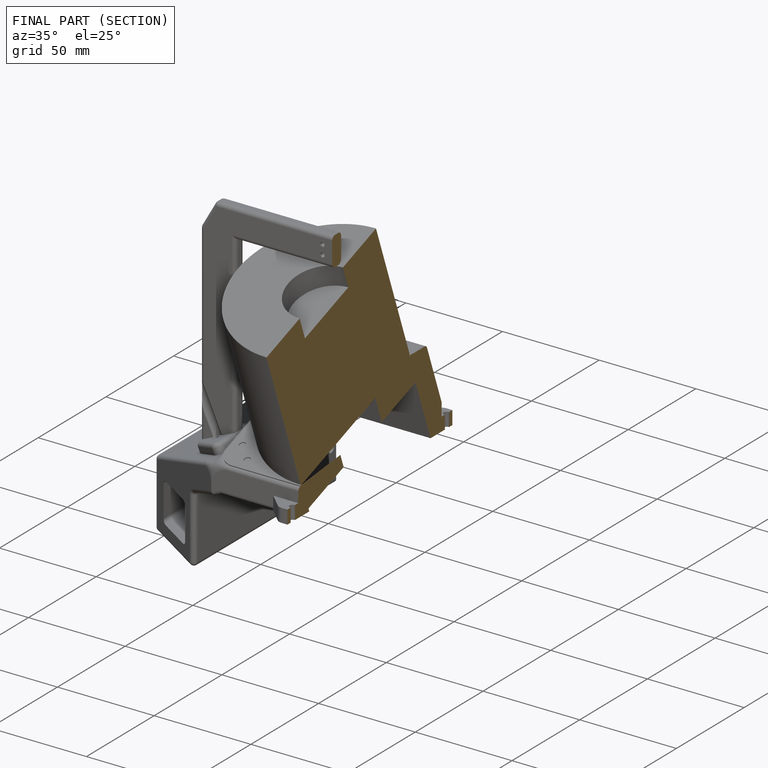
[diagram: finished part — half-section view (interior)]
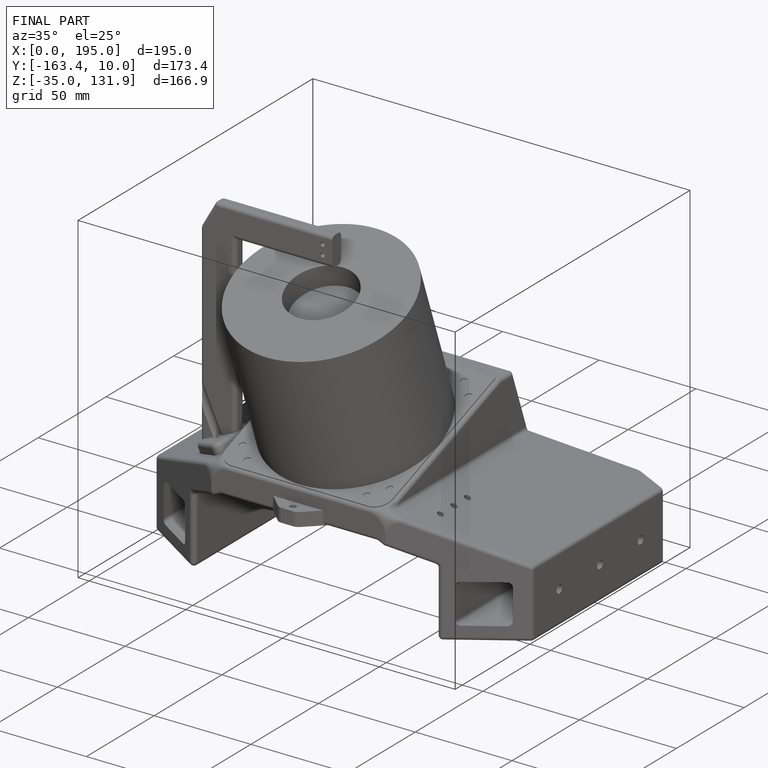
[diagram: finished part — iso view with bounding-box wireframe]
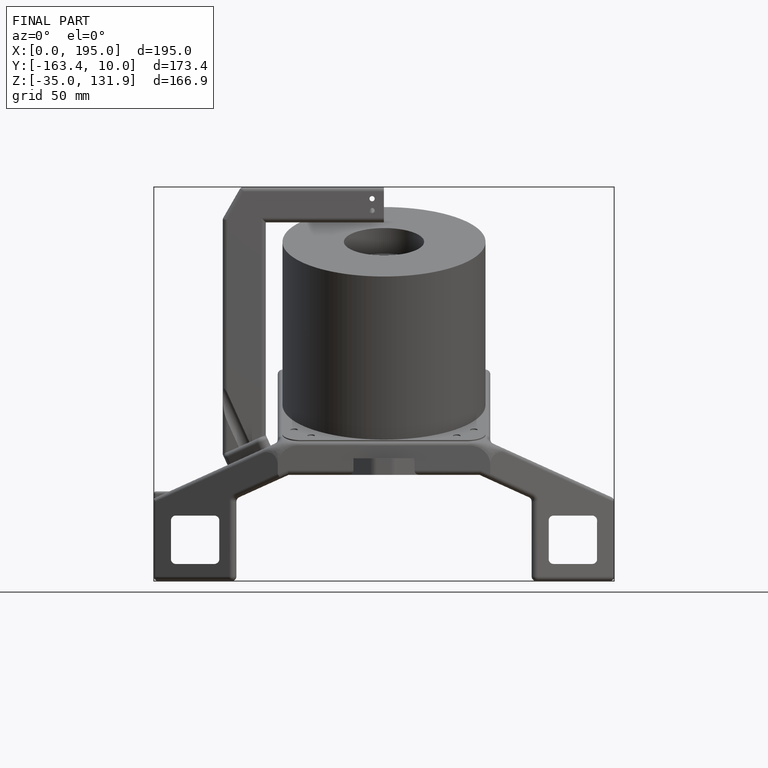
[diagram: finished part — front view with bounding-box wireframe]
